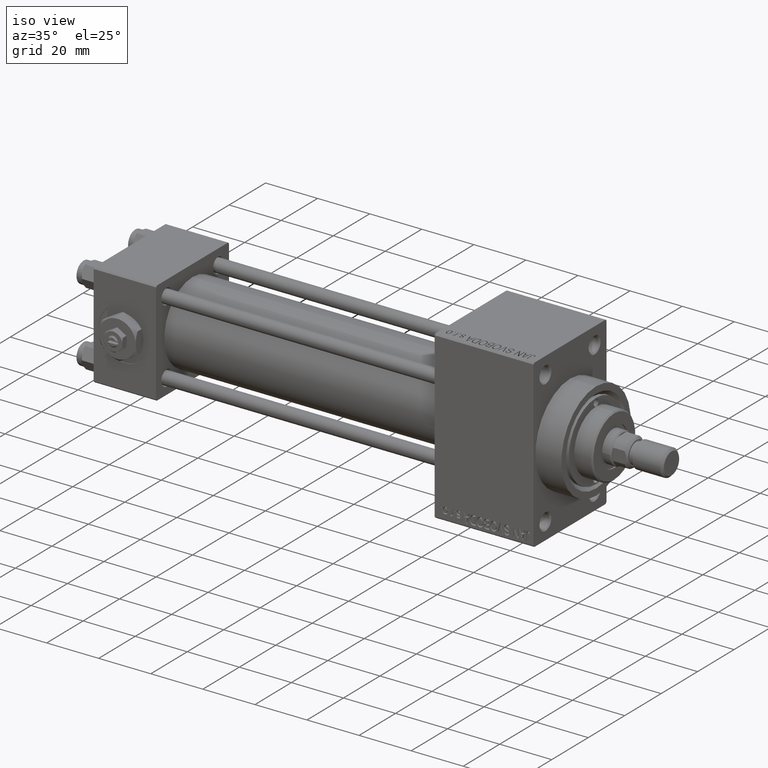
[diagram: clean part render]
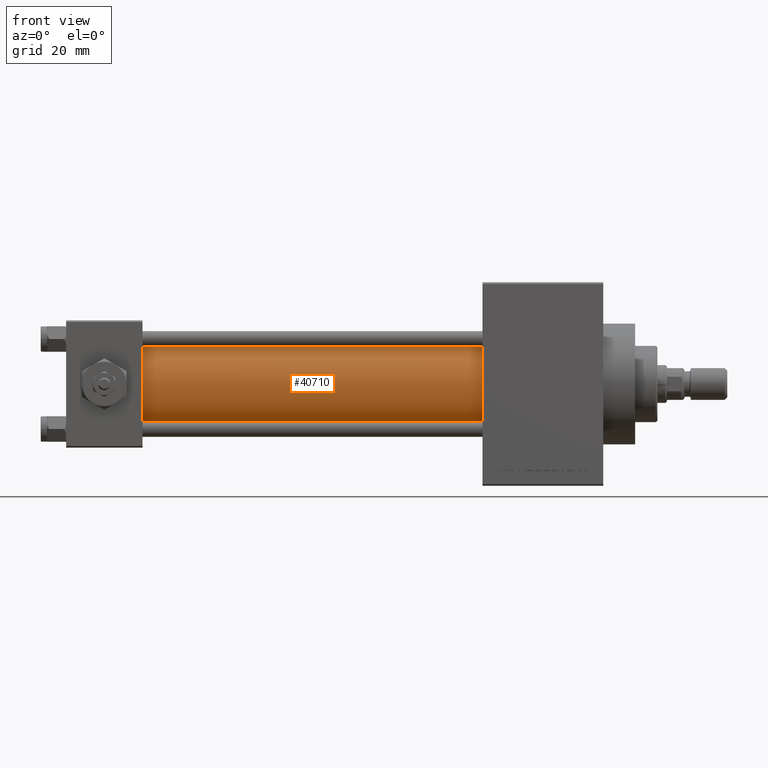
[diagram: tour spotlight — one face highlighted and labeled with its STEP entity id]
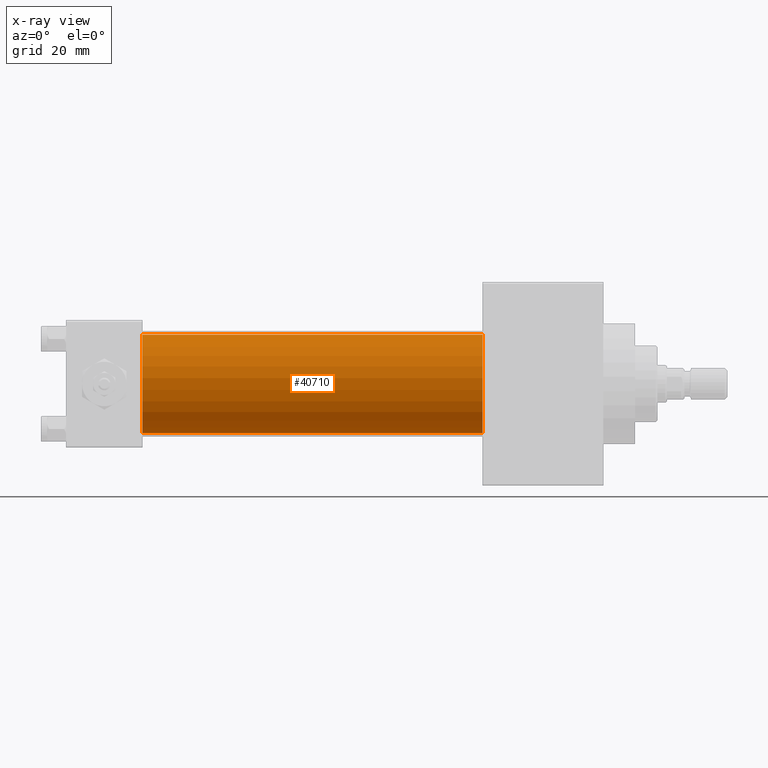
[diagram: x-ray of the same camera — body ghosted, this tour face saturated]
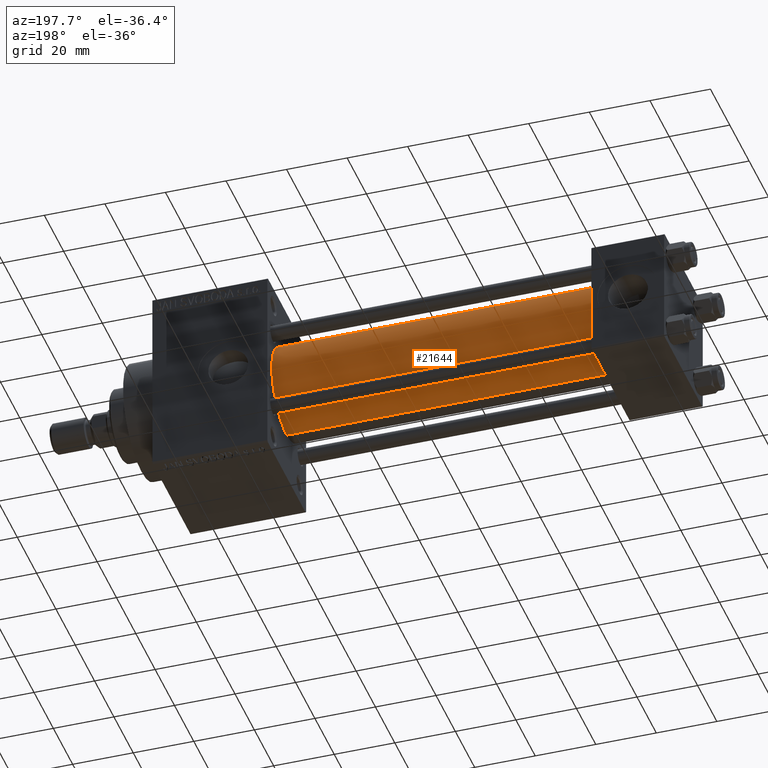
[diagram: tour spotlight — one face highlighted and labeled with its STEP entity id]
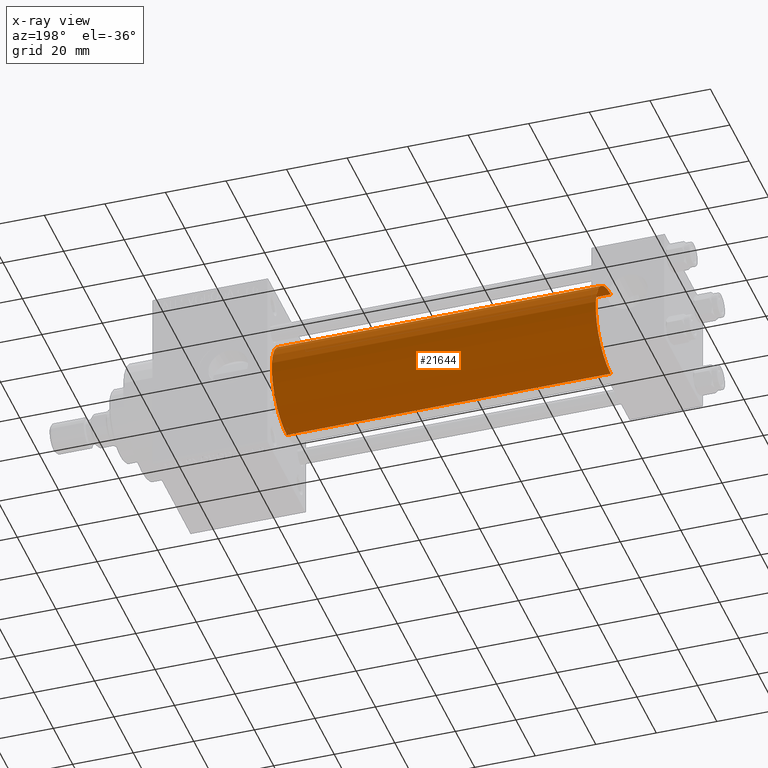
[diagram: x-ray of the same camera — body ghosted, this tour face saturated]
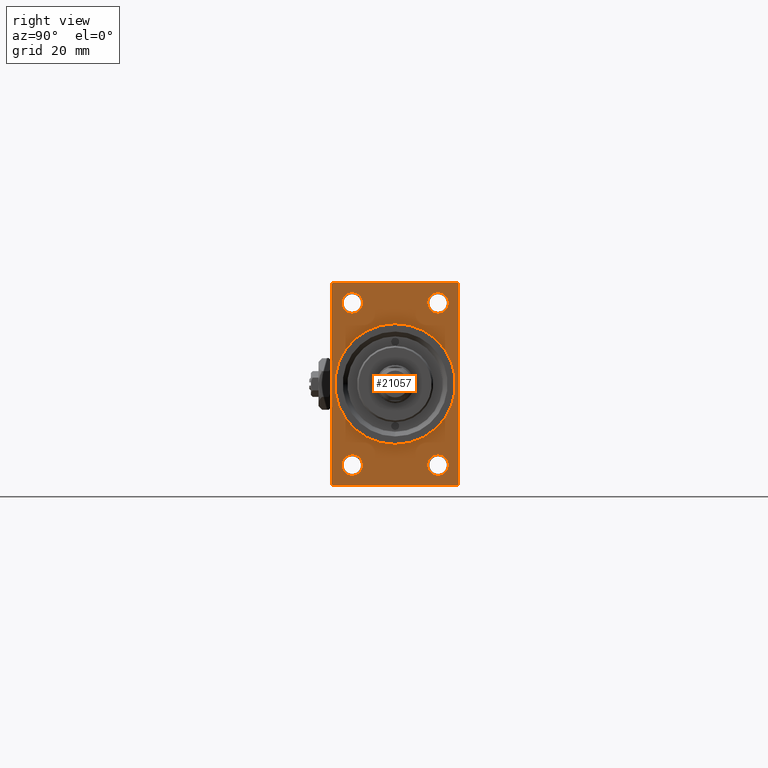
[diagram: tour spotlight — one face highlighted and labeled with its STEP entity id]
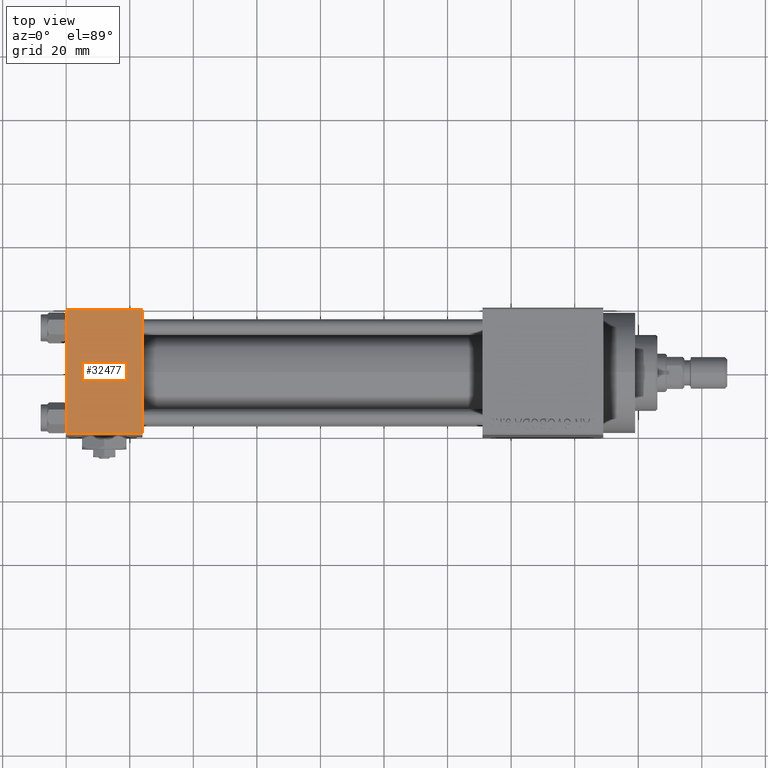
[diagram: tour spotlight — one face highlighted and labeled with its STEP entity id]
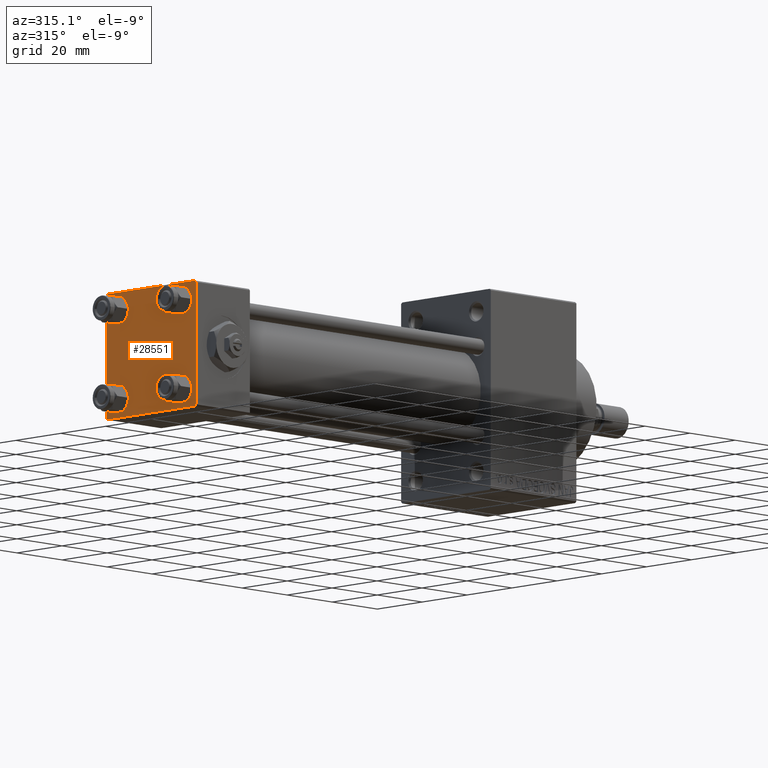
[diagram: tour spotlight — one face highlighted and labeled with its STEP entity id]
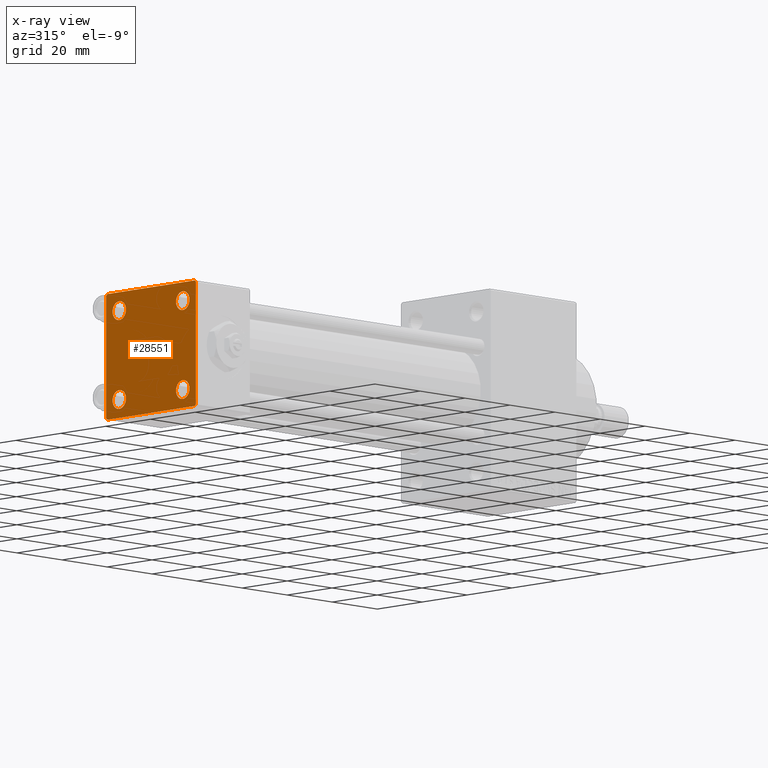
[diagram: x-ray of the same camera — body ghosted, this tour face saturated]
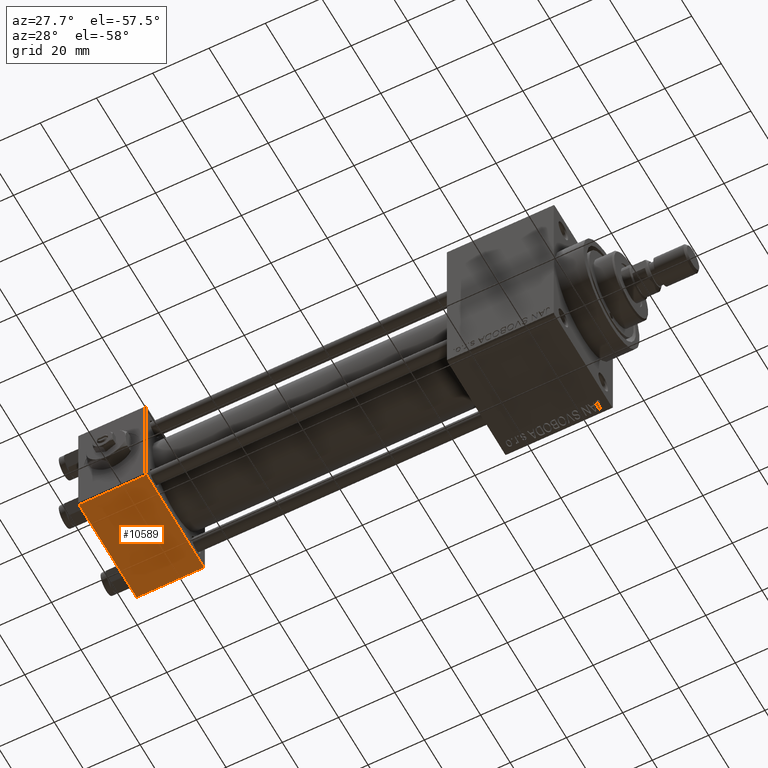
[diagram: tour spotlight — one face highlighted and labeled with its STEP entity id]
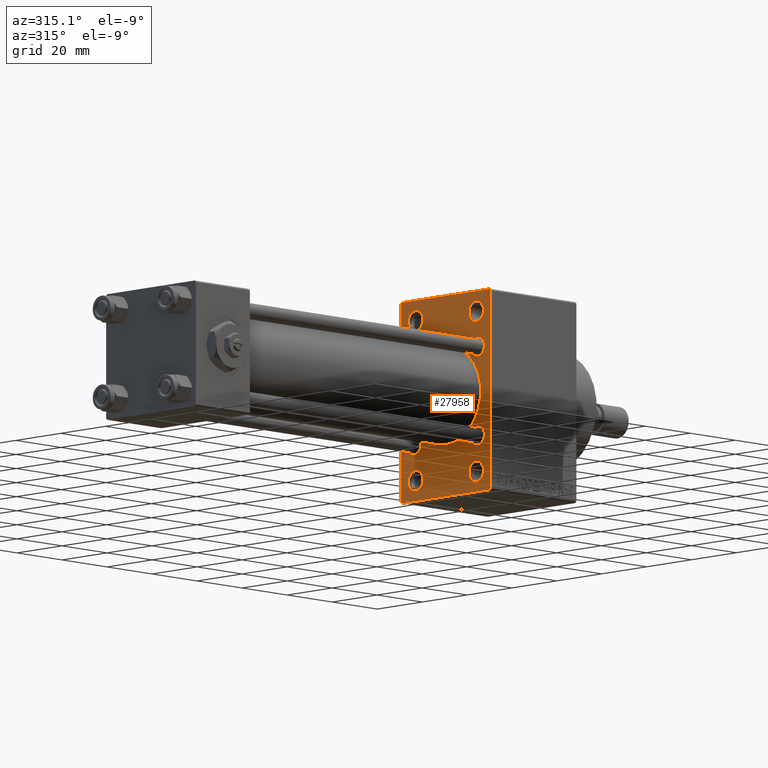
[diagram: tour spotlight — one face highlighted and labeled with its STEP entity id]
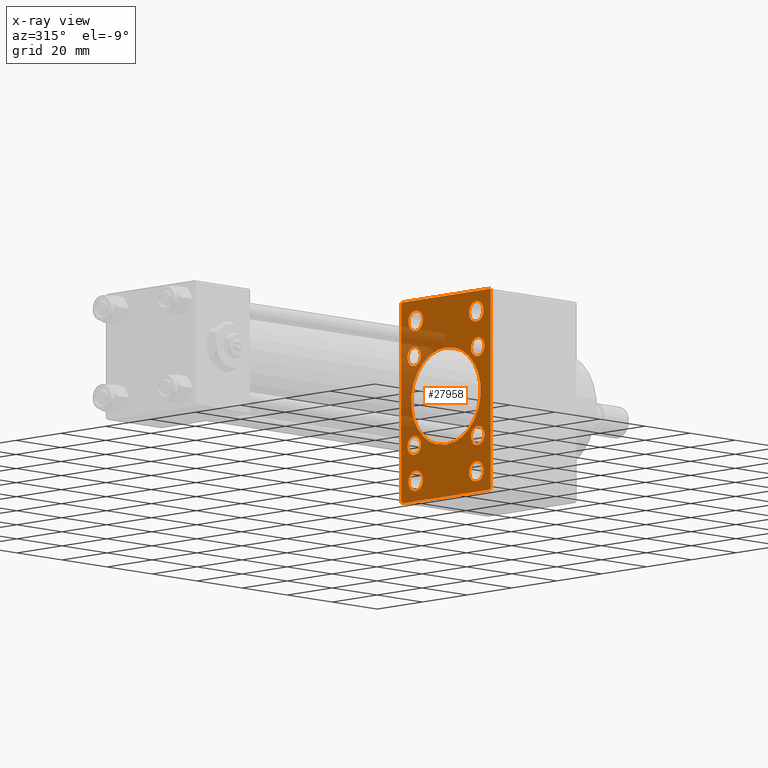
[diagram: x-ray of the same camera — body ghosted, this tour face saturated]
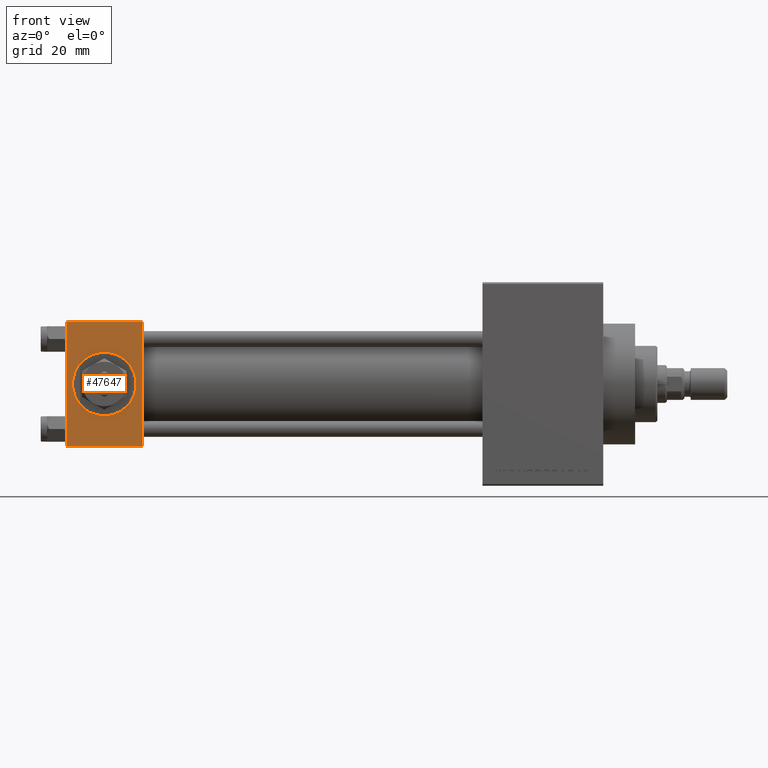
[diagram: tour spotlight — one face highlighted and labeled with its STEP entity id]
A machine part: a face-by-face anatomy tour. The part has 1177 B-rep faces; the first image is the clean iso view, then the 8 largest visible faces are spotlighted one at a time (largest first), each with its STEP entity span.

Face 1 — front view, entity #40710. An x-ray twin of the same camera follows (body ghosted, this face saturated) — the face is partly hidden behind the body. In plain terms, the highlighted cylindrical surface (partial cylindrical patch) has radius 15.5 mm, axis along (-1, -0, -0).
Definition (entity closure, byte-faithful):
#1781 = FACE_OUTER_BOUND ( 'NONE', #24476, .T. ) ;
#3795 = ORIENTED_EDGE ( 'NONE', *, *, #17005, .F. ) ;
#4765 = CARTESIAN_POINT ( 'NONE',  ( 23.99999999999999289, -7.038826752868131828E-16, -15.50000000000000000 ) ) ;
#6316 = CARTESIAN_POINT ( 'NONE',  ( 131.0000000000000000, -7.038826752868131828E-16, -15.50000000000000000 ) ) ;
#7599 = CARTESIAN_POINT ( 'NONE',  ( 131.0000000000000000, -2.602085213965210642E-15, 0.000000000000000000 ) ) ;
#8243 = LINE ( 'NONE', #23979, #29441 ) ;
#8352 = AXIS2_PLACEMENT_3D ( 'NONE', #14333, #21585, #36582 ) ;
#9610 = ORIENTED_EDGE ( 'NONE', *, *, #19669, .T. ) ;
#13789 = CARTESIAN_POINT ( 'NONE',  ( 131.0000000000000000, -7.038826752868131828E-16, -15.50000000000000000 ) ) ;
#14333 = CARTESIAN_POINT ( 'NONE',  ( 23.99999999999999289, -2.602085213965210642E-15, 0.000000000000000000 ) ) ;
#17005 = EDGE_CURVE ( 'NONE', #35870, #40050, #21332, .T. ) ;
#17040 = DIRECTION ( 'NONE',  ( 0.000000000000000000, 0.000000000000000000, 1.000000000000000000 ) ) ;
#17307 = ORIENTED_EDGE ( 'NONE', *, *, #17974, .F. ) ;
#17974 = EDGE_CURVE ( 'NONE', #40050, #21904, #21814, .T. ) ;
#18614 = DIRECTION ( 'NONE',  ( 0.000000000000000000, 0.000000000000000000, -1.000000000000000000 ) ) ;
#19669 = EDGE_CURVE ( 'NONE', #35870, #29483, #8243, .T. ) ;
#21332 = CIRCLE ( 'NONE', #49261, 15.50000000000000000 ) ;
#21537 = CYLINDRICAL_SURFACE ( 'NONE', #36950, 15.50000000000000000 ) ;
#21585 = DIRECTION ( 'NONE',  ( 1.000000000000000000, 0.000000000000000000, 0.000000000000000000 ) ) ;
#21814 = LINE ( 'NONE', #6316, #22198 ) ;
#21904 = VERTEX_POINT ( 'NONE', #4765 ) ;
#22198 = VECTOR ( 'NONE', #25574, 1000.000000000000000 ) ;
#23979 = CARTESIAN_POINT ( 'NONE',  ( 131.0000000000000000, -2.602085213965210642E-15, 15.50000000000000000 ) ) ;
#24476 = EDGE_LOOP ( 'NONE', ( #17307, #3795, #9610, #45852 ) ) ;
#24539 = DIRECTION ( 'NONE',  ( -1.000000000000000000, -0.000000000000000000, -0.000000000000000000 ) ) ;
#25574 = DIRECTION ( 'NONE',  ( -1.000000000000000000, -0.000000000000000000, -0.000000000000000000 ) ) ;
#26846 = DIRECTION ( 'NONE',  ( 1.000000000000000000, 0.000000000000000000, 0.000000000000000000 ) ) ;
#29441 = VECTOR ( 'NONE', #35470, 1000.000000000000000 ) ;
#29483 = VERTEX_POINT ( 'NONE', #35183 ) ;
#35183 = CARTESIAN_POINT ( 'NONE',  ( 23.99999999999999289, -2.602085213965210642E-15, 15.50000000000000000 ) ) ;
#35470 = DIRECTION ( 'NONE',  ( -1.000000000000000000, -0.000000000000000000, -0.000000000000000000 ) ) ;
#35870 = VERTEX_POINT ( 'NONE', #42817 ) ;
#36582 = DIRECTION ( 'NONE',  ( 0.000000000000000000, 0.000000000000000000, 1.000000000000000000 ) ) ;
#36950 = AXIS2_PLACEMENT_3D ( 'NONE', #43537, #24539, #17040 ) ;
#40050 = VERTEX_POINT ( 'NONE', #13789 ) ;
#40710 = ADVANCED_FACE ( 'NONE', ( #1781 ), #21537, .T. ) ;
#42817 = CARTESIAN_POINT ( 'NONE',  ( 131.0000000000000000, -2.602085213965210642E-15, 15.50000000000000000 ) ) ;
#43537 = CARTESIAN_POINT ( 'NONE',  ( 131.0000000000000000, -2.602085213965210642E-15, 0.000000000000000000 ) ) ;
#45072 = CIRCLE ( 'NONE', #8352, 15.50000000000000000 ) ;
#45783 = EDGE_CURVE ( 'NONE', #29483, #21904, #45072, .T. ) ;
#45852 = ORIENTED_EDGE ( 'NONE', *, *, #45783, .T. ) ;
#49261 = AXIS2_PLACEMENT_3D ( 'NONE', #7599, #26846, #18614 ) ;

Face 2 — auxiliary view, entity #21644. An x-ray twin of the same camera follows (body ghosted, this face saturated) — the face is partly hidden behind the body. In plain terms, the highlighted cylindrical surface (partial cylindrical patch) has radius 15.5 mm, axis along (-1, -0, -0).
Definition (entity closure, byte-faithful):
#3920 = AXIS2_PLACEMENT_3D ( 'NONE', #49418, #42173, #31148 ) ;
#4765 = CARTESIAN_POINT ( 'NONE',  ( 23.99999999999999289, -7.038826752868131828E-16, -15.50000000000000000 ) ) ;
#6316 = CARTESIAN_POINT ( 'NONE',  ( 131.0000000000000000, -7.038826752868131828E-16, -15.50000000000000000 ) ) ;
#8243 = LINE ( 'NONE', #23979, #29441 ) ;
#8763 = ORIENTED_EDGE ( 'NONE', *, *, #19669, .F. ) ;
#11275 = DIRECTION ( 'NONE',  ( 0.000000000000000000, 0.000000000000000000, 1.000000000000000000 ) ) ;
#13789 = CARTESIAN_POINT ( 'NONE',  ( 131.0000000000000000, -7.038826752868131828E-16, -15.50000000000000000 ) ) ;
#14535 = DIRECTION ( 'NONE',  ( 1.000000000000000000, 0.000000000000000000, 0.000000000000000000 ) ) ;
#16818 = CIRCLE ( 'NONE', #27981, 15.50000000000000000 ) ;
#17974 = EDGE_CURVE ( 'NONE', #40050, #21904, #21814, .T. ) ;
#19669 = EDGE_CURVE ( 'NONE', #35870, #29483, #8243, .T. ) ;
#21644 = ADVANCED_FACE ( 'NONE', ( #23423 ), #37936, .T. ) ;
#21814 = LINE ( 'NONE', #6316, #22198 ) ;
#21904 = VERTEX_POINT ( 'NONE', #4765 ) ;
#22198 = VECTOR ( 'NONE', #25574, 1000.000000000000000 ) ;
#23423 = FACE_OUTER_BOUND ( 'NONE', #37849, .T. ) ;
#23979 = CARTESIAN_POINT ( 'NONE',  ( 131.0000000000000000, -2.602085213965210642E-15, 15.50000000000000000 ) ) ;
#25574 = DIRECTION ( 'NONE',  ( -1.000000000000000000, -0.000000000000000000, -0.000000000000000000 ) ) ;
#27981 = AXIS2_PLACEMENT_3D ( 'NONE', #48763, #14535, #11275 ) ;
#28063 = EDGE_CURVE ( 'NONE', #21904, #29483, #16818, .T. ) ;
#29081 = EDGE_CURVE ( 'NONE', #40050, #35870, #40808, .T. ) ;
#29441 = VECTOR ( 'NONE', #35470, 1000.000000000000000 ) ;
#29483 = VERTEX_POINT ( 'NONE', #35183 ) ;
#30279 = ORIENTED_EDGE ( 'NONE', *, *, #17974, .T. ) ;
#30413 = AXIS2_PLACEMENT_3D ( 'NONE', #32859, #40605, #44605 ) ;
#31148 = DIRECTION ( 'NONE',  ( 0.000000000000000000, 0.000000000000000000, 1.000000000000000000 ) ) ;
#32859 = CARTESIAN_POINT ( 'NONE',  ( 131.0000000000000000, -2.602085213965210642E-15, 0.000000000000000000 ) ) ;
#35183 = CARTESIAN_POINT ( 'NONE',  ( 23.99999999999999289, -2.602085213965210642E-15, 15.50000000000000000 ) ) ;
#35470 = DIRECTION ( 'NONE',  ( -1.000000000000000000, -0.000000000000000000, -0.000000000000000000 ) ) ;
#35870 = VERTEX_POINT ( 'NONE', #42817 ) ;
#36854 = ORIENTED_EDGE ( 'NONE', *, *, #29081, .F. ) ;
#37849 = EDGE_LOOP ( 'NONE', ( #36854, #30279, #47686, #8763 ) ) ;
#37936 = CYLINDRICAL_SURFACE ( 'NONE', #3920, 15.50000000000000000 ) ;
#40050 = VERTEX_POINT ( 'NONE', #13789 ) ;
#40605 = DIRECTION ( 'NONE',  ( 1.000000000000000000, 0.000000000000000000, 0.000000000000000000 ) ) ;
#40808 = CIRCLE ( 'NONE', #30413, 15.50000000000000000 ) ;
#42173 = DIRECTION ( 'NONE',  ( -1.000000000000000000, -0.000000000000000000, -0.000000000000000000 ) ) ;
#42817 = CARTESIAN_POINT ( 'NONE',  ( 131.0000000000000000, -2.602085213965210642E-15, 15.50000000000000000 ) ) ;
#44605 = DIRECTION ( 'NONE',  ( 0.000000000000000000, 0.000000000000000000, -1.000000000000000000 ) ) ;
#47686 = ORIENTED_EDGE ( 'NONE', *, *, #28063, .T. ) ;
#48763 = CARTESIAN_POINT ( 'NONE',  ( 23.99999999999999289, -2.602085213965210642E-15, 0.000000000000000000 ) ) ;
#49418 = CARTESIAN_POINT ( 'NONE',  ( 131.0000000000000000, -2.602085213965210642E-15, 0.000000000000000000 ) ) ;

Face 3 — right view, entity #21057. In plain terms, the highlighted planar face has unit normal (-1, 0, 0).
Definition (entity closure, byte-faithful):
#98 = VERTEX_POINT ( 'NONE', #32879 ) ;
#287 = ORIENTED_EDGE ( 'NONE', *, *, #6743, .T. ) ;
#411 = VECTOR ( 'NONE', #5996, 1000.000000000000000 ) ;
#474 = VECTOR ( 'NONE', #41851, 1000.000000000000000 ) ;
#1103 = DIRECTION ( 'NONE',  ( -1.000000000000000000, -0.000000000000000000, -0.000000000000000000 ) ) ;
#1541 = DIRECTION ( 'NONE',  ( 0.000000000000000000, 0.000000000000000000, -1.000000000000000000 ) ) ;
#1788 = CARTESIAN_POINT ( 'NONE',  ( 169.0000000000000000, 20.00000000000000000, 32.00000000000000000 ) ) ;
#1805 = DIRECTION ( 'NONE',  ( -1.000000000000000000, -0.000000000000000000, -0.000000000000000000 ) ) ;
#1901 = DIRECTION ( 'NONE',  ( -1.000000000000000000, -0.000000000000000000, -0.000000000000000000 ) ) ;
#2320 = LINE ( 'NONE', #17569, #37289 ) ;
#2677 = VERTEX_POINT ( 'NONE', #3690 ) ;
#2864 = CIRCLE ( 'NONE', #37204, 3.250000000000030642 ) ;
#3407 = AXIS2_PLACEMENT_3D ( 'NONE', #21902, #1901, #5904 ) ;
#3690 = CARTESIAN_POINT ( 'NONE',  ( 169.0000000000000000, -20.00000000000000000, -31.50000000000000711 ) ) ;
#3859 = CARTESIAN_POINT ( 'NONE',  ( 169.0000000000000000, 20.00000000000000000, 32.00000000000000000 ) ) ;
#3967 = DIRECTION ( 'NONE',  ( -1.000000000000000000, -0.000000000000000000, -0.000000000000000000 ) ) ;
#4039 = DIRECTION ( 'NONE',  ( -1.000000000000000000, -0.000000000000000000, -0.000000000000000000 ) ) ;
#4300 = ORIENTED_EDGE ( 'NONE', *, *, #43729, .T. ) ;
#4984 = CIRCLE ( 'NONE', #3407, 3.250000000000030642 ) ;
#5495 = CARTESIAN_POINT ( 'NONE',  ( 169.0000000000000000, 20.00000000000000000, -32.00000000000000000 ) ) ;
#5557 = CARTESIAN_POINT ( 'NONE',  ( 169.0000000000000000, -13.50000000000000178, 25.50000000000000355 ) ) ;
#5793 = DIRECTION ( 'NONE',  ( -1.000000000000000000, -0.000000000000000000, -0.000000000000000000 ) ) ;
#5904 = DIRECTION ( 'NONE',  ( 0.000000000000000000, 0.000000000000000000, 1.000000000000000000 ) ) ;
#5996 = DIRECTION ( 'NONE',  ( 0.000000000000000000, -1.000000000000000000, 0.000000000000000000 ) ) ;
#6244 = CARTESIAN_POINT ( 'NONE',  ( 169.0000000000000000, -19.49999999999997158, 31.99999999999999289 ) ) ;
#6484 = ORIENTED_EDGE ( 'NONE', *, *, #40248, .T. ) ;
#6743 = EDGE_CURVE ( 'NONE', #39362, #38689, #41891, .T. ) ;
#6767 = CARTESIAN_POINT ( 'NONE',  ( 169.0000000000000000, 0.000000000000000000, 0.000000000000000000 ) ) ;
#6769 = EDGE_CURVE ( 'NONE', #15229, #18617, #21044, .T. ) ;
#6913 = DIRECTION ( 'NONE',  ( -0.000000000000000000, 0.000000000000000000, 1.000000000000000000 ) ) ;
#7054 = VERTEX_POINT ( 'NONE', #13928 ) ;
#7406 = FACE_OUTER_BOUND ( 'NONE', #27865, .T. ) ;
#7772 = ORIENTED_EDGE ( 'NONE', *, *, #41905, .T. ) ;
#7910 = EDGE_LOOP ( 'NONE', ( #6484, #10741 ) ) ;
#7916 = VERTEX_POINT ( 'NONE', #6244 ) ;
#7918 = EDGE_CURVE ( 'NONE', #34380, #49214, #25002, .T. ) ;
#8022 = ORIENTED_EDGE ( 'NONE', *, *, #29901, .T. ) ;
#8527 = CARTESIAN_POINT ( 'NONE',  ( 169.0000000000000000, 13.49999999999999822, 25.50000000000000355 ) ) ;
#8812 = LINE ( 'NONE', #28044, #43485 ) ;
#9031 = VECTOR ( 'NONE', #42735, 1000.000000000000114 ) ;
#9122 = EDGE_LOOP ( 'NONE', ( #37973, #33490 ) ) ;
#9426 = FACE_BOUND ( 'NONE', #9122, .T. ) ;
#10144 = EDGE_LOOP ( 'NONE', ( #287, #4300 ) ) ;
#10632 = CARTESIAN_POINT ( 'NONE',  ( 169.0000000000000000, -19.50000000000002842, -32.00000000000000000 ) ) ;
#10724 = CIRCLE ( 'NONE', #45003, 3.250000000000030642 ) ;
#10741 = ORIENTED_EDGE ( 'NONE', *, *, #25362, .T. ) ;
#11429 = CARTESIAN_POINT ( 'NONE',  ( 169.0000000000000000, -13.50000000000000178, 22.24999999999997158 ) ) ;
#11531 = EDGE_CURVE ( 'NONE', #41938, #2677, #8812, .T. ) ;
#11830 = AXIS2_PLACEMENT_3D ( 'NONE', #6767, #37275, #45501 ) ;
#12380 = DIRECTION ( 'NONE',  ( 0.000000000000000000, 0.000000000000000000, 1.000000000000000000 ) ) ;
#12507 = VERTEX_POINT ( 'NONE', #36124 ) ;
#13042 = CARTESIAN_POINT ( 'NONE',  ( 169.0000000000000000, 2.326828918379970970E-15, -19.00000000000000000 ) ) ;
#13323 = DIRECTION ( 'NONE',  ( 0.000000000000000000, 0.000000000000000000, 1.000000000000000000 ) ) ;
#13380 = LINE ( 'NONE', #43620, #28896 ) ;
#13802 = DIRECTION ( 'NONE',  ( 0.000000000000000000, 0.000000000000000000, -1.000000000000000000 ) ) ;
#13928 = CARTESIAN_POINT ( 'NONE',  ( 169.0000000000000000, 13.49999999999999822, 28.75000000000003553 ) ) ;
#14306 = AXIS2_PLACEMENT_3D ( 'NONE', #48894, #36915, #6913 ) ;
#14620 = EDGE_CURVE ( 'NONE', #26703, #7916, #33865, .T. ) ;
#14827 = CIRCLE ( 'NONE', #48345, 3.250000000000030642 ) ;
#14859 = EDGE_CURVE ( 'NONE', #34380, #18617, #2320, .T. ) ;
#15223 = CARTESIAN_POINT ( 'NONE',  ( 169.0000000000000000, 13.49999999999999822, -25.50000000000000000 ) ) ;
#15226 = DIRECTION ( 'NONE',  ( 0.000000000000000000, 0.000000000000000000, 1.000000000000000000 ) ) ;
#15229 = VERTEX_POINT ( 'NONE', #25653 ) ;
#15994 = CARTESIAN_POINT ( 'NONE',  ( 169.0000000000000000, 19.50000000000000000, 32.00000000000000000 ) ) ;
#16073 = CARTESIAN_POINT ( 'NONE',  ( 169.0000000000000000, 0.000000000000000000, 19.00000000000000000 ) ) ;
#16543 = EDGE_CURVE ( 'NONE', #2677, #49214, #39003, .T. ) ;
#17191 = ORIENTED_EDGE ( 'NONE', *, *, #34703, .T. ) ;
#17569 = CARTESIAN_POINT ( 'NONE',  ( 169.0000000000000000, 20.00000000000000000, -31.50000000000000000 ) ) ;
#17790 = DIRECTION ( 'NONE',  ( 0.000000000000000000, 0.000000000000000000, 1.000000000000000000 ) ) ;
#17861 = CARTESIAN_POINT ( 'NONE',  ( 169.0000000000000000, 13.49999999999999822, -25.50000000000000000 ) ) ;
#18058 = CARTESIAN_POINT ( 'NONE',  ( 169.0000000000000000, 0.000000000000000000, 0.000000000000000000 ) ) ;
#18617 = VERTEX_POINT ( 'NONE', #42649 ) ;
#18740 = VECTOR ( 'NONE', #13802, 1000.000000000000000 ) ;
#19544 = EDGE_CURVE ( 'NONE', #20142, #36839, #48549, .T. ) ;
#19739 = LINE ( 'NONE', #15994, #9031 ) ;
#20142 = VERTEX_POINT ( 'NONE', #13042 ) ;
#20661 = FACE_BOUND ( 'NONE', #7910, .T. ) ;
#20738 = ORIENTED_EDGE ( 'NONE', *, *, #14859, .T. ) ;
#21044 = LINE ( 'NONE', #1788, #18740 ) ;
#21057 = ADVANCED_FACE ( 'NONE', ( #40664, #43666, #21667, #20661, #9426, #7406 ), #33166, .F. ) ;
#21667 = FACE_BOUND ( 'NONE', #48632, .T. ) ;
#21902 = CARTESIAN_POINT ( 'NONE',  ( 169.0000000000000000, 13.49999999999999822, 25.50000000000000355 ) ) ;
#22838 = CARTESIAN_POINT ( 'NONE',  ( 169.0000000000000000, 13.49999999999999822, 22.24999999999997513 ) ) ;
#23936 = DIRECTION ( 'NONE',  ( 0.000000000000000000, 0.000000000000000000, 1.000000000000000000 ) ) ;
#24731 = CARTESIAN_POINT ( 'NONE',  ( 169.0000000000000000, -20.00000000000000000, 31.49999999999999289 ) ) ;
#24855 = AXIS2_PLACEMENT_3D ( 'NONE', #46861, #1103, #12380 ) ;
#24940 = CARTESIAN_POINT ( 'NONE',  ( 169.0000000000000000, 13.49999999999999822, -28.75000000000002842 ) ) ;
#25002 = LINE ( 'NONE', #5495, #411 ) ;
#25362 = EDGE_CURVE ( 'NONE', #7054, #29187, #34276, .T. ) ;
#25653 = CARTESIAN_POINT ( 'NONE',  ( 169.0000000000000000, 20.00000000000000000, 31.50000000000000000 ) ) ;
#26192 = VERTEX_POINT ( 'NONE', #11429 ) ;
#26288 = EDGE_LOOP ( 'NONE', ( #47390, #17191 ) ) ;
#26703 = VERTEX_POINT ( 'NONE', #44756 ) ;
#27511 = DIRECTION ( 'NONE',  ( 0.000000000000000000, 0.7071067811865328068, -0.7071067811865622277 ) ) ;
#27865 = EDGE_LOOP ( 'NONE', ( #44686, #44657, #43170, #20738, #45281, #7772, #37114, #42669 ) ) ;
#28044 = CARTESIAN_POINT ( 'NONE',  ( 169.0000000000000000, -20.00000000000000000, 31.99999999999999289 ) ) ;
#28285 = CIRCLE ( 'NONE', #37124, 19.00000000000000000 ) ;
#28896 = VECTOR ( 'NONE', #39866, 1000.000000000000000 ) ;
#29187 = VERTEX_POINT ( 'NONE', #22838 ) ;
#29362 = DIRECTION ( 'NONE',  ( 0.000000000000000000, 0.000000000000000000, 1.000000000000000000 ) ) ;
#29636 = CIRCLE ( 'NONE', #24855, 3.250000000000030642 ) ;
#29757 = EDGE_CURVE ( 'NONE', #7916, #41938, #13380, .T. ) ;
#29901 = EDGE_CURVE ( 'NONE', #98, #35331, #42443, .T. ) ;
#31320 = CARTESIAN_POINT ( 'NONE',  ( 169.0000000000000000, -13.50000000000000533, -22.24999999999996447 ) ) ;
#32879 = CARTESIAN_POINT ( 'NONE',  ( 169.0000000000000000, 13.49999999999999822, -22.24999999999996803 ) ) ;
#33109 = DIRECTION ( 'NONE',  ( -1.000000000000000000, -0.000000000000000000, -0.000000000000000000 ) ) ;
#33166 = PLANE ( 'NONE',  #14306 ) ;
#33306 = DIRECTION ( 'NONE',  ( 1.000000000000000000, 0.000000000000000000, 0.000000000000000000 ) ) ;
#33490 = ORIENTED_EDGE ( 'NONE', *, *, #19544, .F. ) ;
#33865 = LINE ( 'NONE', #3859, #474 ) ;
#34276 = CIRCLE ( 'NONE', #47825, 3.250000000000030642 ) ;
#34380 = VERTEX_POINT ( 'NONE', #42684 ) ;
#34703 = EDGE_CURVE ( 'NONE', #12507, #26192, #29636, .T. ) ;
#34770 = DIRECTION ( 'NONE',  ( 0.000000000000000000, 0.000000000000000000, 1.000000000000000000 ) ) ;
#35194 = DIRECTION ( 'NONE',  ( 0.000000000000000000, 0.000000000000000000, -1.000000000000000000 ) ) ;
#35331 = VERTEX_POINT ( 'NONE', #24940 ) ;
#35700 = VECTOR ( 'NONE', #27511, 1000.000000000000000 ) ;
#36124 = CARTESIAN_POINT ( 'NONE',  ( 169.0000000000000000, -13.50000000000000178, 28.75000000000003197 ) ) ;
#36839 = VERTEX_POINT ( 'NONE', #16073 ) ;
#36915 = DIRECTION ( 'NONE',  ( -1.000000000000000000, 0.000000000000000000, -0.000000000000000000 ) ) ;
#37114 = ORIENTED_EDGE ( 'NONE', *, *, #14620, .T. ) ;
#37124 = AXIS2_PLACEMENT_3D ( 'NONE', #18058, #33306, #35194 ) ;
#37204 = AXIS2_PLACEMENT_3D ( 'NONE', #5557, #1805, #13323 ) ;
#37275 = DIRECTION ( 'NONE',  ( 1.000000000000000000, 0.000000000000000000, 0.000000000000000000 ) ) ;
#37289 = VECTOR ( 'NONE', #48054, 1000.000000000000114 ) ;
#37973 = ORIENTED_EDGE ( 'NONE', *, *, #48518, .F. ) ;
#38689 = VERTEX_POINT ( 'NONE', #31320 ) ;
#39003 = LINE ( 'NONE', #42757, #35700 ) ;
#39362 = VERTEX_POINT ( 'NONE', #48135 ) ;
#39866 = DIRECTION ( 'NONE',  ( -0.000000000000000000, -0.7071067811865672237, -0.7071067811865279218 ) ) ;
#40045 = CARTESIAN_POINT ( 'NONE',  ( 169.0000000000000000, -13.50000000000000533, -25.49999999999999645 ) ) ;
#40248 = EDGE_CURVE ( 'NONE', #29187, #7054, #4984, .T. ) ;
#40664 = FACE_BOUND ( 'NONE', #26288, .T. ) ;
#41851 = DIRECTION ( 'NONE',  ( 0.000000000000000000, -1.000000000000000000, -1.734723475976807094E-16 ) ) ;
#41891 = CIRCLE ( 'NONE', #46658, 3.250000000000030642 ) ;
#41905 = EDGE_CURVE ( 'NONE', #15229, #26703, #19739, .T. ) ;
#41938 = VERTEX_POINT ( 'NONE', #24731 ) ;
#42217 = ORIENTED_EDGE ( 'NONE', *, *, #47617, .T. ) ;
#42443 = CIRCLE ( 'NONE', #48827, 3.250000000000030642 ) ;
#42649 = CARTESIAN_POINT ( 'NONE',  ( 169.0000000000000000, 20.00000000000000000, -31.50000000000000000 ) ) ;
#42669 = ORIENTED_EDGE ( 'NONE', *, *, #29757, .T. ) ;
#42684 = CARTESIAN_POINT ( 'NONE',  ( 169.0000000000000000, 19.50000000000000000, -32.00000000000000000 ) ) ;
#42735 = DIRECTION ( 'NONE',  ( 0.000000000000000000, -0.7071067811865474617, 0.7071067811865474617 ) ) ;
#42757 = CARTESIAN_POINT ( 'NONE',  ( 169.0000000000000000, -19.50000000000002842, -32.00000000000000000 ) ) ;
#43170 = ORIENTED_EDGE ( 'NONE', *, *, #7918, .F. ) ;
#43485 = VECTOR ( 'NONE', #1541, 1000.000000000000000 ) ;
#43620 = CARTESIAN_POINT ( 'NONE',  ( 169.0000000000000000, -20.00000000000000000, 31.49999999999999289 ) ) ;
#43666 = FACE_BOUND ( 'NONE', #10144, .T. ) ;
#43729 = EDGE_CURVE ( 'NONE', #38689, #39362, #10724, .T. ) ;
#44657 = ORIENTED_EDGE ( 'NONE', *, *, #16543, .T. ) ;
#44686 = ORIENTED_EDGE ( 'NONE', *, *, #11531, .T. ) ;
#44756 = CARTESIAN_POINT ( 'NONE',  ( 169.0000000000000000, 19.50000000000000000, 32.00000000000000000 ) ) ;
#45003 = AXIS2_PLACEMENT_3D ( 'NONE', #48722, #49457, #15226 ) ;
#45281 = ORIENTED_EDGE ( 'NONE', *, *, #6769, .F. ) ;
#45501 = DIRECTION ( 'NONE',  ( 0.000000000000000000, 0.000000000000000000, -1.000000000000000000 ) ) ;
#46658 = AXIS2_PLACEMENT_3D ( 'NONE', #40045, #5793, #17790 ) ;
#46861 = CARTESIAN_POINT ( 'NONE',  ( 169.0000000000000000, -13.50000000000000178, 25.50000000000000355 ) ) ;
#47390 = ORIENTED_EDGE ( 'NONE', *, *, #48397, .T. ) ;
#47617 = EDGE_CURVE ( 'NONE', #35331, #98, #14827, .T. ) ;
#47825 = AXIS2_PLACEMENT_3D ( 'NONE', #8527, #4039, #34770 ) ;
#48054 = DIRECTION ( 'NONE',  ( -0.000000000000000000, 0.7071067811865474617, 0.7071067811865474617 ) ) ;
#48135 = CARTESIAN_POINT ( 'NONE',  ( 169.0000000000000000, -13.50000000000000533, -28.75000000000002487 ) ) ;
#48345 = AXIS2_PLACEMENT_3D ( 'NONE', #15223, #3967, #23936 ) ;
#48397 = EDGE_CURVE ( 'NONE', #26192, #12507, #2864, .T. ) ;
#48518 = EDGE_CURVE ( 'NONE', #36839, #20142, #28285, .T. ) ;
#48549 = CIRCLE ( 'NONE', #11830, 19.00000000000000000 ) ;
#48632 = EDGE_LOOP ( 'NONE', ( #42217, #8022 ) ) ;
#48722 = CARTESIAN_POINT ( 'NONE',  ( 169.0000000000000000, -13.50000000000000533, -25.49999999999999645 ) ) ;
#48827 = AXIS2_PLACEMENT_3D ( 'NONE', #17861, #33109, #29362 ) ;
#48894 = CARTESIAN_POINT ( 'NONE',  ( 169.0000000000000000, 0.000000000000000000, 0.000000000000000000 ) ) ;
#49214 = VERTEX_POINT ( 'NONE', #10632 ) ;
#49457 = DIRECTION ( 'NONE',  ( -1.000000000000000000, -0.000000000000000000, -0.000000000000000000 ) ) ;

Face 4 — top view, entity #32477. In plain terms, the highlighted planar face has unit normal (0, 0, -1).
Definition (entity closure, byte-faithful):
#1406 = DIRECTION ( 'NONE',  ( 0.000000000000000000, 2.602085213965210149E-16, -1.000000000000000000 ) ) ;
#3375 = LINE ( 'NONE', #7854, #48412 ) ;
#7092 = CARTESIAN_POINT ( 'NONE',  ( 0.000000000000000000, 19.50000000000000000, 20.00000000000000000 ) ) ;
#7327 = ORIENTED_EDGE ( 'NONE', *, *, #14575, .T. ) ;
#7854 = CARTESIAN_POINT ( 'NONE',  ( 0.000000000000000000, 20.00000000000000000, 20.00000000000000000 ) ) ;
#8438 = DIRECTION ( 'NONE',  ( 0.000000000000000000, 1.000000000000000000, 2.602085213965210149E-16 ) ) ;
#9517 = VECTOR ( 'NONE', #26618, 1000.000000000000000 ) ;
#12944 = VERTEX_POINT ( 'NONE', #13701 ) ;
#13701 = CARTESIAN_POINT ( 'NONE',  ( 0.000000000000000000, 19.50000000000000000, 20.00000000000000000 ) ) ;
#13882 = LINE ( 'NONE', #17626, #42436 ) ;
#14252 = ORIENTED_EDGE ( 'NONE', *, *, #24082, .T. ) ;
#14575 = EDGE_CURVE ( 'NONE', #12944, #47679, #3375, .T. ) ;
#16178 = FACE_OUTER_BOUND ( 'NONE', #27167, .T. ) ;
#17626 = CARTESIAN_POINT ( 'NONE',  ( 24.00000000000000000, 20.00000000000000000, 20.00000000000000000 ) ) ;
#18906 = ORIENTED_EDGE ( 'NONE', *, *, #24933, .T. ) ;
#22739 = VERTEX_POINT ( 'NONE', #36657 ) ;
#23422 = CARTESIAN_POINT ( 'NONE',  ( 24.00000000000000000, 19.50000000000000000, 20.00000000000000000 ) ) ;
#24082 = EDGE_CURVE ( 'NONE', #45328, #12944, #25359, .T. ) ;
#24883 = DIRECTION ( 'NONE',  ( 0.000000000000000000, -1.000000000000000000, -2.602085213965210149E-16 ) ) ;
#24933 = EDGE_CURVE ( 'NONE', #47679, #22739, #45113, .T. ) ;
#25359 = LINE ( 'NONE', #7092, #26265 ) ;
#26108 = DIRECTION ( 'NONE',  ( -1.000000000000000000, 0.000000000000000000, 0.000000000000000000 ) ) ;
#26265 = VECTOR ( 'NONE', #26108, 1000.000000000000000 ) ;
#26618 = DIRECTION ( 'NONE',  ( 1.000000000000000000, 0.000000000000000000, 0.000000000000000000 ) ) ;
#26855 = CARTESIAN_POINT ( 'NONE',  ( 24.00000000000000000, -19.49999999999999289, 19.99999999999998934 ) ) ;
#27167 = EDGE_LOOP ( 'NONE', ( #7327, #18906, #48395, #14252 ) ) ;
#30514 = AXIS2_PLACEMENT_3D ( 'NONE', #46906, #1406, #8438 ) ;
#31181 = CARTESIAN_POINT ( 'NONE',  ( 0.000000000000000000, -19.49999999999999289, 19.99999999999998934 ) ) ;
#32477 = ADVANCED_FACE ( 'NONE', ( #16178 ), #39168, .F. ) ;
#35661 = EDGE_CURVE ( 'NONE', #45328, #22739, #13882, .T. ) ;
#36657 = CARTESIAN_POINT ( 'NONE',  ( 24.00000000000000000, -19.49999999999999289, 19.99999999999998934 ) ) ;
#39168 = PLANE ( 'NONE',  #30514 ) ;
#41132 = DIRECTION ( 'NONE',  ( 0.000000000000000000, -1.000000000000000000, -2.602085213965210149E-16 ) ) ;
#42436 = VECTOR ( 'NONE', #24883, 1000.000000000000000 ) ;
#45113 = LINE ( 'NONE', #26855, #9517 ) ;
#45328 = VERTEX_POINT ( 'NONE', #23422 ) ;
#46906 = CARTESIAN_POINT ( 'NONE',  ( 24.00000000000000000, 20.00000000000000000, 20.00000000000000000 ) ) ;
#47679 = VERTEX_POINT ( 'NONE', #31181 ) ;
#48395 = ORIENTED_EDGE ( 'NONE', *, *, #35661, .F. ) ;
#48412 = VECTOR ( 'NONE', #41132, 1000.000000000000000 ) ;

Face 5 — auxiliary view, entity #28551. An x-ray twin of the same camera follows (body ghosted, this face saturated) — the face is partly hidden behind the body. In plain terms, the highlighted planar face has unit normal (-1, 0, 0).
Definition (entity closure, byte-faithful):
#479 = EDGE_LOOP ( 'NONE', ( #19696, #1672 ) ) ;
#884 = CIRCLE ( 'NONE', #38405, 2.999999999999983569 ) ;
#1654 = DIRECTION ( 'NONE',  ( 0.000000000000000000, 0.000000000000000000, 1.000000000000000000 ) ) ;
#1672 = ORIENTED_EDGE ( 'NONE', *, *, #14948, .T. ) ;
#2192 = EDGE_CURVE ( 'NONE', #3195, #47679, #29328, .T. ) ;
#2795 = CARTESIAN_POINT ( 'NONE',  ( 0.000000000000000000, -14.14999999999999503, 11.15000000000002345 ) ) ;
#2854 = VECTOR ( 'NONE', #47114, 1000.000000000000000 ) ;
#2880 = DIRECTION ( 'NONE',  ( 1.000000000000000000, 0.000000000000000000, 0.000000000000000000 ) ) ;
#3165 = LINE ( 'NONE', #44911, #22442 ) ;
#3195 = VERTEX_POINT ( 'NONE', #16583 ) ;
#3375 = LINE ( 'NONE', #7854, #48412 ) ;
#3835 = ORIENTED_EDGE ( 'NONE', *, *, #10047, .T. ) ;
#4195 = DIRECTION ( 'NONE',  ( -0.000000000000000000, 0.000000000000000000, 1.000000000000000000 ) ) ;
#4232 = LINE ( 'NONE', #7743, #46284 ) ;
#4369 = ORIENTED_EDGE ( 'NONE', *, *, #13165, .T. ) ;
#4437 = FACE_BOUND ( 'NONE', #14368, .T. ) ;
#4516 = CIRCLE ( 'NONE', #48447, 2.999999999999983569 ) ;
#4626 = EDGE_CURVE ( 'NONE', #23798, #12128, #32743, .T. ) ;
#5084 = EDGE_CURVE ( 'NONE', #7832, #46924, #10555, .T. ) ;
#5123 = LINE ( 'NONE', #16391, #2854 ) ;
#5677 = EDGE_LOOP ( 'NONE', ( #3835, #24121 ) ) ;
#5781 = DIRECTION ( 'NONE',  ( 1.000000000000000000, 0.000000000000000000, 0.000000000000000000 ) ) ;
#6091 = CARTESIAN_POINT ( 'NONE',  ( 0.000000000000000000, -14.14999999999999503, -14.15000000000000391 ) ) ;
#7743 = CARTESIAN_POINT ( 'NONE',  ( 0.000000000000000000, -19.75000000000020961, -19.74999999999979394 ) ) ;
#7832 = VERTEX_POINT ( 'NONE', #20495 ) ;
#7854 = CARTESIAN_POINT ( 'NONE',  ( 0.000000000000000000, 20.00000000000000000, 20.00000000000000000 ) ) ;
#8281 = DIRECTION ( 'NONE',  ( 1.000000000000000000, 0.000000000000000000, 0.000000000000000000 ) ) ;
#8338 = CIRCLE ( 'NONE', #34667, 3.000000000000004441 ) ;
#8423 = ORIENTED_EDGE ( 'NONE', *, *, #20219, .T. ) ;
#8968 = CIRCLE ( 'NONE', #14540, 2.999999999999983569 ) ;
#9079 = CARTESIAN_POINT ( 'NONE',  ( 0.000000000000000000, 14.14999999999999858, 17.14999999999998437 ) ) ;
#9331 = DIRECTION ( 'NONE',  ( 1.000000000000000000, 0.000000000000000000, 0.000000000000000000 ) ) ;
#9338 = CARTESIAN_POINT ( 'NONE',  ( 0.000000000000000000, -20.00000000000000000, -19.49999999999999645 ) ) ;
#9844 = CARTESIAN_POINT ( 'NONE',  ( 0.000000000000000000, 14.14999999999999858, 11.15000000000001990 ) ) ;
#9967 = AXIS2_PLACEMENT_3D ( 'NONE', #47056, #9331, #12827 ) ;
#10047 = EDGE_CURVE ( 'NONE', #12128, #23798, #8338, .T. ) ;
#10555 = CIRCLE ( 'NONE', #12139, 2.999999999999983569 ) ;
#11204 = AXIS2_PLACEMENT_3D ( 'NONE', #32712, #12974, #13481 ) ;
#11558 = VECTOR ( 'NONE', #12890, 1000.000000000000000 ) ;
#11699 = FACE_BOUND ( 'NONE', #479, .T. ) ;
#12128 = VERTEX_POINT ( 'NONE', #12687 ) ;
#12139 = AXIS2_PLACEMENT_3D ( 'NONE', #20280, #26643, #18895 ) ;
#12687 = CARTESIAN_POINT ( 'NONE',  ( 0.000000000000000000, -14.14999999999999503, -11.15000000000000036 ) ) ;
#12827 = DIRECTION ( 'NONE',  ( 0.000000000000000000, 0.000000000000000000, 1.000000000000000000 ) ) ;
#12890 = DIRECTION ( 'NONE',  ( -0.000000000000000000, -0.7071067811865524577, -0.7071067811865426878 ) ) ;
#12944 = VERTEX_POINT ( 'NONE', #13701 ) ;
#12974 = DIRECTION ( 'NONE',  ( 1.000000000000000000, 0.000000000000000000, 0.000000000000000000 ) ) ;
#13165 = EDGE_CURVE ( 'NONE', #40384, #34947, #5123, .T. ) ;
#13481 = DIRECTION ( 'NONE',  ( 0.000000000000000000, 0.000000000000000000, 1.000000000000000000 ) ) ;
#13701 = CARTESIAN_POINT ( 'NONE',  ( 0.000000000000000000, 19.50000000000000000, 20.00000000000000000 ) ) ;
#14368 = EDGE_LOOP ( 'NONE', ( #40730, #30314 ) ) ;
#14540 = AXIS2_PLACEMENT_3D ( 'NONE', #26465, #47389, #1654 ) ;
#14575 = EDGE_CURVE ( 'NONE', #12944, #47679, #3375, .T. ) ;
#14948 = EDGE_CURVE ( 'NONE', #45761, #17898, #4516, .T. ) ;
#15228 = AXIS2_PLACEMENT_3D ( 'NONE', #42192, #19685, #4195 ) ;
#16391 = CARTESIAN_POINT ( 'NONE',  ( 0.000000000000000000, 20.00000000000000000, -20.00000000000000711 ) ) ;
#16583 = CARTESIAN_POINT ( 'NONE',  ( 0.000000000000000000, -20.00000000000000355, 19.49999999999998224 ) ) ;
#17085 = CARTESIAN_POINT ( 'NONE',  ( -0.000000000000000000, -19.74999999999992539, 19.75000000000006395 ) ) ;
#17335 = DIRECTION ( 'NONE',  ( -0.000000000000000000, 0.7071067811865500152, 0.7071067811865451302 ) ) ;
#17898 = VERTEX_POINT ( 'NONE', #9079 ) ;
#18216 = VECTOR ( 'NONE', #17335, 1000.000000000000114 ) ;
#18533 = CIRCLE ( 'NONE', #34474, 2.999999999999983569 ) ;
#18849 = CARTESIAN_POINT ( 'NONE',  ( 0.000000000000000000, -19.50000000000000711, -20.00000000000000000 ) ) ;
#18895 = DIRECTION ( 'NONE',  ( 0.000000000000000000, 0.000000000000000000, 1.000000000000000000 ) ) ;
#19685 = DIRECTION ( 'NONE',  ( -1.000000000000000000, 0.000000000000000000, -0.000000000000000000 ) ) ;
#19696 = ORIENTED_EDGE ( 'NONE', *, *, #40127, .T. ) ;
#19776 = CARTESIAN_POINT ( 'NONE',  ( 0.000000000000000000, 14.14999999999999858, 14.15000000000000036 ) ) ;
#20209 = DIRECTION ( 'NONE',  ( 0.000000000000000000, -0.7071067811865401342, 0.7071067811865549002 ) ) ;
#20219 = EDGE_CURVE ( 'NONE', #38728, #34434, #47773, .T. ) ;
#20280 = CARTESIAN_POINT ( 'NONE',  ( 0.000000000000000000, 14.14999999999999858, -14.15000000000000036 ) ) ;
#20495 = CARTESIAN_POINT ( 'NONE',  ( 0.000000000000000000, 14.14999999999999858, -11.15000000000001812 ) ) ;
#21193 = ORIENTED_EDGE ( 'NONE', *, *, #14575, .F. ) ;
#21343 = CARTESIAN_POINT ( 'NONE',  ( 0.000000000000000000, 14.14999999999999858, -17.14999999999998437 ) ) ;
#22442 = VECTOR ( 'NONE', #37171, 999.9999999999998863 ) ;
#22959 = FACE_BOUND ( 'NONE', #42693, .T. ) ;
#23122 = VERTEX_POINT ( 'NONE', #47831 ) ;
#23798 = VERTEX_POINT ( 'NONE', #38133 ) ;
#23925 = FACE_BOUND ( 'NONE', #5677, .T. ) ;
#24121 = ORIENTED_EDGE ( 'NONE', *, *, #4626, .T. ) ;
#25238 = CARTESIAN_POINT ( 'NONE',  ( 0.000000000000000000, -20.00000000000000355, 19.99999999999998934 ) ) ;
#26465 = CARTESIAN_POINT ( 'NONE',  ( 0.000000000000000000, 14.14999999999999858, 14.15000000000000036 ) ) ;
#26643 = DIRECTION ( 'NONE',  ( 1.000000000000000000, 0.000000000000000000, 0.000000000000000000 ) ) ;
#26834 = EDGE_CURVE ( 'NONE', #34947, #38752, #4232, .T. ) ;
#27432 = FACE_OUTER_BOUND ( 'NONE', #48598, .T. ) ;
#27522 = DIRECTION ( 'NONE',  ( 0.000000000000000000, 0.000000000000000000, 1.000000000000000000 ) ) ;
#28348 = EDGE_CURVE ( 'NONE', #3195, #38752, #44473, .T. ) ;
#28551 = ADVANCED_FACE ( 'NONE', ( #22959, #23925, #4437, #11699, #27432 ), #35174, .T. ) ;
#28721 = EDGE_CURVE ( 'NONE', #12944, #38728, #3165, .T. ) ;
#28903 = ORIENTED_EDGE ( 'NONE', *, *, #49033, .T. ) ;
#29328 = LINE ( 'NONE', #17085, #18216 ) ;
#29336 = DIRECTION ( 'NONE',  ( 1.000000000000000000, 0.000000000000000000, 0.000000000000000000 ) ) ;
#29402 = VERTEX_POINT ( 'NONE', #2795 ) ;
#30314 = ORIENTED_EDGE ( 'NONE', *, *, #49380, .T. ) ;
#30347 = CARTESIAN_POINT ( 'NONE',  ( 0.000000000000000000, 20.00000000000000000, 19.49999999999999289 ) ) ;
#31181 = CARTESIAN_POINT ( 'NONE',  ( 0.000000000000000000, -19.49999999999999289, 19.99999999999998934 ) ) ;
#31793 = VECTOR ( 'NONE', #44277, 1000.000000000000000 ) ;
#32475 = DIRECTION ( 'NONE',  ( 0.000000000000000000, 8.673617379884036705E-17, -1.000000000000000000 ) ) ;
#32712 = CARTESIAN_POINT ( 'NONE',  ( 0.000000000000000000, -14.14999999999999503, -14.15000000000000391 ) ) ;
#32743 = CIRCLE ( 'NONE', #11204, 3.000000000000004441 ) ;
#34434 = VERTEX_POINT ( 'NONE', #43174 ) ;
#34474 = AXIS2_PLACEMENT_3D ( 'NONE', #39534, #5781, #43779 ) ;
#34667 = AXIS2_PLACEMENT_3D ( 'NONE', #6091, #29336, #47579 ) ;
#34947 = VERTEX_POINT ( 'NONE', #18849 ) ;
#35056 = ORIENTED_EDGE ( 'NONE', *, *, #37526, .T. ) ;
#35174 = PLANE ( 'NONE',  #15228 ) ;
#36387 = LINE ( 'NONE', #47116, #11558 ) ;
#37129 = CARTESIAN_POINT ( 'NONE',  ( 0.000000000000000000, -14.14999999999999503, 14.15000000000000391 ) ) ;
#37171 = DIRECTION ( 'NONE',  ( 0.000000000000000000, 0.7071067811865425767, -0.7071067811865525687 ) ) ;
#37526 = EDGE_CURVE ( 'NONE', #23122, #29402, #884, .T. ) ;
#38075 = ORIENTED_EDGE ( 'NONE', *, *, #26834, .T. ) ;
#38133 = CARTESIAN_POINT ( 'NONE',  ( 0.000000000000000000, -14.14999999999999503, -17.15000000000000924 ) ) ;
#38375 = VECTOR ( 'NONE', #32475, 1000.000000000000000 ) ;
#38405 = AXIS2_PLACEMENT_3D ( 'NONE', #37129, #2880, #42092 ) ;
#38728 = VERTEX_POINT ( 'NONE', #30347 ) ;
#38752 = VERTEX_POINT ( 'NONE', #9338 ) ;
#39139 = ORIENTED_EDGE ( 'NONE', *, *, #28348, .F. ) ;
#39534 = CARTESIAN_POINT ( 'NONE',  ( 0.000000000000000000, -14.14999999999999503, 14.15000000000000391 ) ) ;
#39975 = EDGE_CURVE ( 'NONE', #29402, #23122, #18533, .T. ) ;
#40127 = EDGE_CURVE ( 'NONE', #17898, #45761, #8968, .T. ) ;
#40384 = VERTEX_POINT ( 'NONE', #41647 ) ;
#40528 = CARTESIAN_POINT ( 'NONE',  ( 0.000000000000000000, 20.00000000000000000, 20.00000000000000000 ) ) ;
#40730 = ORIENTED_EDGE ( 'NONE', *, *, #5084, .T. ) ;
#41132 = DIRECTION ( 'NONE',  ( 0.000000000000000000, -1.000000000000000000, -2.602085213965210149E-16 ) ) ;
#41647 = CARTESIAN_POINT ( 'NONE',  ( 0.000000000000000000, 19.50000000000000711, -20.00000000000000711 ) ) ;
#42092 = DIRECTION ( 'NONE',  ( 0.000000000000000000, 0.000000000000000000, 1.000000000000000000 ) ) ;
#42192 = CARTESIAN_POINT ( 'NONE',  ( 0.000000000000000000, 0.000000000000000000, 0.000000000000000000 ) ) ;
#42693 = EDGE_LOOP ( 'NONE', ( #35056, #48229 ) ) ;
#42754 = ORIENTED_EDGE ( 'NONE', *, *, #2192, .T. ) ;
#43174 = CARTESIAN_POINT ( 'NONE',  ( 0.000000000000000000, 20.00000000000000000, -19.50000000000002132 ) ) ;
#43342 = ORIENTED_EDGE ( 'NONE', *, *, #28721, .T. ) ;
#43779 = DIRECTION ( 'NONE',  ( 0.000000000000000000, 0.000000000000000000, 1.000000000000000000 ) ) ;
#44277 = DIRECTION ( 'NONE',  ( 0.000000000000000000, 0.000000000000000000, -1.000000000000000000 ) ) ;
#44473 = LINE ( 'NONE', #25238, #38375 ) ;
#44911 = CARTESIAN_POINT ( 'NONE',  ( -0.000000000000000000, 19.75000000000013500, 19.74999999999986144 ) ) ;
#45761 = VERTEX_POINT ( 'NONE', #9844 ) ;
#46284 = VECTOR ( 'NONE', #20209, 1000.000000000000000 ) ;
#46924 = VERTEX_POINT ( 'NONE', #21343 ) ;
#47056 = CARTESIAN_POINT ( 'NONE',  ( 0.000000000000000000, 14.14999999999999858, -14.15000000000000036 ) ) ;
#47114 = DIRECTION ( 'NONE',  ( 0.000000000000000000, -1.000000000000000000, 1.734723475976807094E-16 ) ) ;
#47116 = CARTESIAN_POINT ( 'NONE',  ( -0.000000000000000000, 19.74999999999986855, -19.75000000000014211 ) ) ;
#47389 = DIRECTION ( 'NONE',  ( 1.000000000000000000, 0.000000000000000000, 0.000000000000000000 ) ) ;
#47579 = DIRECTION ( 'NONE',  ( 0.000000000000000000, 0.000000000000000000, 1.000000000000000000 ) ) ;
#47679 = VERTEX_POINT ( 'NONE', #31181 ) ;
#47773 = LINE ( 'NONE', #40528, #31793 ) ;
#47831 = CARTESIAN_POINT ( 'NONE',  ( 0.000000000000000000, -14.14999999999999503, 17.14999999999998792 ) ) ;
#48229 = ORIENTED_EDGE ( 'NONE', *, *, #39975, .T. ) ;
#48265 = CIRCLE ( 'NONE', #9967, 2.999999999999983569 ) ;
#48412 = VECTOR ( 'NONE', #41132, 1000.000000000000000 ) ;
#48447 = AXIS2_PLACEMENT_3D ( 'NONE', #19776, #8281, #27522 ) ;
#48598 = EDGE_LOOP ( 'NONE', ( #8423, #28903, #4369, #38075, #39139, #42754, #21193, #43342 ) ) ;
#49033 = EDGE_CURVE ( 'NONE', #34434, #40384, #36387, .T. ) ;
#49380 = EDGE_CURVE ( 'NONE', #46924, #7832, #48265, .T. ) ;

Face 6 — auxiliary view, entity #10589. In plain terms, the highlighted planar face has unit normal (0, -0, -1).
Definition (entity closure, byte-faithful):
#1113 = VECTOR ( 'NONE', #33467, 1000.000000000000000 ) ;
#2470 = CARTESIAN_POINT ( 'NONE',  ( 0.000000000000000000, -19.50000000000000711, -20.00000000000000000 ) ) ;
#2854 = VECTOR ( 'NONE', #47114, 1000.000000000000000 ) ;
#3803 = EDGE_CURVE ( 'NONE', #48661, #19755, #25522, .T. ) ;
#5123 = LINE ( 'NONE', #16391, #2854 ) ;
#5801 = EDGE_CURVE ( 'NONE', #19755, #34947, #18221, .T. ) ;
#6512 = DIRECTION ( 'NONE',  ( 0.000000000000000000, -1.000000000000000000, 1.734723475976807094E-16 ) ) ;
#10420 = DIRECTION ( 'NONE',  ( 0.000000000000000000, 1.000000000000000000, -1.734723475976806848E-16 ) ) ;
#10589 = ADVANCED_FACE ( 'NONE', ( #32204 ), #37161, .T. ) ;
#10963 = VECTOR ( 'NONE', #48037, 1000.000000000000000 ) ;
#13165 = EDGE_CURVE ( 'NONE', #40384, #34947, #5123, .T. ) ;
#14412 = CARTESIAN_POINT ( 'NONE',  ( 24.00000000000000000, 20.00000000000000000, -20.00000000000000711 ) ) ;
#15519 = ORIENTED_EDGE ( 'NONE', *, *, #3803, .T. ) ;
#16342 = EDGE_CURVE ( 'NONE', #40384, #48661, #44546, .T. ) ;
#16391 = CARTESIAN_POINT ( 'NONE',  ( 0.000000000000000000, 20.00000000000000000, -20.00000000000000711 ) ) ;
#18221 = LINE ( 'NONE', #2470, #1113 ) ;
#18743 = EDGE_LOOP ( 'NONE', ( #48349, #34710, #15519, #48567 ) ) ;
#18849 = CARTESIAN_POINT ( 'NONE',  ( 0.000000000000000000, -19.50000000000000711, -20.00000000000000000 ) ) ;
#19755 = VERTEX_POINT ( 'NONE', #43968 ) ;
#21901 = DIRECTION ( 'NONE',  ( 0.000000000000000000, -1.734723475976806848E-16, -1.000000000000000000 ) ) ;
#25308 = CARTESIAN_POINT ( 'NONE',  ( 24.00000000000000000, 19.50000000000000711, -20.00000000000000711 ) ) ;
#25522 = LINE ( 'NONE', #40757, #26375 ) ;
#26375 = VECTOR ( 'NONE', #6512, 1000.000000000000000 ) ;
#32204 = FACE_OUTER_BOUND ( 'NONE', #18743, .T. ) ;
#33112 = AXIS2_PLACEMENT_3D ( 'NONE', #14412, #21901, #10420 ) ;
#33467 = DIRECTION ( 'NONE',  ( -1.000000000000000000, 0.000000000000000000, 0.000000000000000000 ) ) ;
#34710 = ORIENTED_EDGE ( 'NONE', *, *, #16342, .T. ) ;
#34947 = VERTEX_POINT ( 'NONE', #18849 ) ;
#35936 = CARTESIAN_POINT ( 'NONE',  ( 24.00000000000000000, 19.50000000000000711, -20.00000000000000711 ) ) ;
#37161 = PLANE ( 'NONE',  #33112 ) ;
#40384 = VERTEX_POINT ( 'NONE', #41647 ) ;
#40757 = CARTESIAN_POINT ( 'NONE',  ( 24.00000000000000000, 20.00000000000000000, -20.00000000000000711 ) ) ;
#41647 = CARTESIAN_POINT ( 'NONE',  ( 0.000000000000000000, 19.50000000000000711, -20.00000000000000711 ) ) ;
#43968 = CARTESIAN_POINT ( 'NONE',  ( 24.00000000000000000, -19.50000000000000711, -20.00000000000000000 ) ) ;
#44546 = LINE ( 'NONE', #25308, #10963 ) ;
#47114 = DIRECTION ( 'NONE',  ( 0.000000000000000000, -1.000000000000000000, 1.734723475976807094E-16 ) ) ;
#48037 = DIRECTION ( 'NONE',  ( 1.000000000000000000, 0.000000000000000000, 0.000000000000000000 ) ) ;
#48349 = ORIENTED_EDGE ( 'NONE', *, *, #13165, .F. ) ;
#48567 = ORIENTED_EDGE ( 'NONE', *, *, #5801, .T. ) ;
#48661 = VERTEX_POINT ( 'NONE', #35936 ) ;

Face 7 — auxiliary view, entity #27958. An x-ray twin of the same camera follows (body ghosted, this face saturated) — the face is partly hidden behind the body. In plain terms, the highlighted planar face has unit normal (-1, 0, 0).
Definition (entity closure, byte-faithful):
#243 = AXIS2_PLACEMENT_3D ( 'NONE', #11452, #18961, #8874 ) ;
#562 = DIRECTION ( 'NONE',  ( 0.000000000000000000, 0.000000000000000000, 1.000000000000000000 ) ) ;
#700 = CARTESIAN_POINT ( 'NONE',  ( 131.0000000000000000, 20.00000000000000000, 32.00000000000000000 ) ) ;
#848 = EDGE_CURVE ( 'NONE', #9159, #23813, #42074, .T. ) ;
#1212 = VERTEX_POINT ( 'NONE', #39822 ) ;
#1215 = VERTEX_POINT ( 'NONE', #36817 ) ;
#1335 = VERTEX_POINT ( 'NONE', #7064 ) ;
#1828 = ORIENTED_EDGE ( 'NONE', *, *, #38276, .T. ) ;
#2235 = AXIS2_PLACEMENT_3D ( 'NONE', #31200, #39206, #38470 ) ;
#2466 = EDGE_LOOP ( 'NONE', ( #22571, #36740 ) ) ;
#2883 = EDGE_LOOP ( 'NONE', ( #7944, #1828 ) ) ;
#2923 = CARTESIAN_POINT ( 'NONE',  ( 131.0000000000000000, 20.00000000000000000, 31.50000000000000000 ) ) ;
#3192 = DIRECTION ( 'NONE',  ( 1.000000000000000000, 0.000000000000000000, 0.000000000000000000 ) ) ;
#3333 = VECTOR ( 'NONE', #42830, 1000.000000000000114 ) ;
#3444 = AXIS2_PLACEMENT_3D ( 'NONE', #22708, #14974, #35607 ) ;
#3642 = CIRCLE ( 'NONE', #31543, 3.249999999999947597 ) ;
#4095 = ORIENTED_EDGE ( 'NONE', *, *, #45629, .T. ) ;
#5304 = ORIENTED_EDGE ( 'NONE', *, *, #36290, .T. ) ;
#5385 = EDGE_LOOP ( 'NONE', ( #5304, #17331 ) ) ;
#5795 = CARTESIAN_POINT ( 'NONE',  ( 131.0000000000000000, 25.75000000000000000, -25.75000000000000000 ) ) ;
#6494 = ORIENTED_EDGE ( 'NONE', *, *, #29081, .T. ) ;
#7064 = CARTESIAN_POINT ( 'NONE',  ( 131.0000000000000000, -14.15000000000000036, -17.15000000000000568 ) ) ;
#7398 = FACE_BOUND ( 'NONE', #2466, .T. ) ;
#7599 = CARTESIAN_POINT ( 'NONE',  ( 131.0000000000000000, -2.602085213965210642E-15, 0.000000000000000000 ) ) ;
#7601 = CARTESIAN_POINT ( 'NONE',  ( 131.0000000000000000, -13.50000000000000178, 25.50000000000000355 ) ) ;
#7624 = CARTESIAN_POINT ( 'NONE',  ( 131.0000000000000000, 13.49999999999999822, 25.50000000000000355 ) ) ;
#7703 = CIRCLE ( 'NONE', #47585, 3.249999999999947597 ) ;
#7921 = CARTESIAN_POINT ( 'NONE',  ( 131.0000000000000000, 14.15000000000000036, -14.15000000000000036 ) ) ;
#7944 = ORIENTED_EDGE ( 'NONE', *, *, #42064, .T. ) ;
#8092 = CARTESIAN_POINT ( 'NONE',  ( 131.0000000000000000, 20.00000000000000000, 32.00000000000000000 ) ) ;
#8152 = EDGE_CURVE ( 'NONE', #1215, #1335, #17164, .T. ) ;
#8166 = DIRECTION ( 'NONE',  ( 0.000000000000000000, 0.000000000000000000, 1.000000000000000000 ) ) ;
#8301 = EDGE_CURVE ( 'NONE', #12975, #42635, #12375, .T. ) ;
#8462 = DIRECTION ( 'NONE',  ( 1.000000000000000000, 0.000000000000000000, 0.000000000000000000 ) ) ;
#8646 = ORIENTED_EDGE ( 'NONE', *, *, #12475, .T. ) ;
#8874 = DIRECTION ( 'NONE',  ( 0.000000000000000000, 0.000000000000000000, 1.000000000000000000 ) ) ;
#9073 = ORIENTED_EDGE ( 'NONE', *, *, #14141, .T. ) ;
#9159 = VERTEX_POINT ( 'NONE', #36649 ) ;
#9452 = VECTOR ( 'NONE', #42726, 1000.000000000000000 ) ;
#9473 = DIRECTION ( 'NONE',  ( 0.000000000000000000, -0.7071067811865328068, 0.7071067811865622277 ) ) ;
#10066 = VECTOR ( 'NONE', #40063, 1000.000000000000000 ) ;
#10561 = LINE ( 'NONE', #25812, #36055 ) ;
#10655 = AXIS2_PLACEMENT_3D ( 'NONE', #34026, #44534, #49260 ) ;
#10757 = ORIENTED_EDGE ( 'NONE', *, *, #16102, .T. ) ;
#10842 = CARTESIAN_POINT ( 'NONE',  ( 131.0000000000000000, 13.49999999999999822, -22.25000000000004974 ) ) ;
#11001 = DIRECTION ( 'NONE',  ( 0.000000000000000000, 0.000000000000000000, 1.000000000000000000 ) ) ;
#11151 = FACE_BOUND ( 'NONE', #24392, .T. ) ;
#11417 = VERTEX_POINT ( 'NONE', #2923 ) ;
#11452 = CARTESIAN_POINT ( 'NONE',  ( 131.0000000000000000, 13.49999999999999822, -25.50000000000000000 ) ) ;
#11557 = ORIENTED_EDGE ( 'NONE', *, *, #42698, .T. ) ;
#11879 = CARTESIAN_POINT ( 'NONE',  ( 131.0000000000000000, 14.15000000000000036, -11.14999999999999680 ) ) ;
#12057 = CARTESIAN_POINT ( 'NONE',  ( 131.0000000000000000, 13.49999999999999822, -28.74999999999994671 ) ) ;
#12075 = CARTESIAN_POINT ( 'NONE',  ( 131.0000000000000000, 13.49999999999999822, 25.50000000000000355 ) ) ;
#12093 = LINE ( 'NONE', #26622, #3333 ) ;
#12207 = CIRCLE ( 'NONE', #3444, 3.000000000000004441 ) ;
#12271 = CIRCLE ( 'NONE', #32239, 3.249999999999947597 ) ;
#12375 = CIRCLE ( 'NONE', #25162, 3.249999999999947597 ) ;
#12475 = EDGE_CURVE ( 'NONE', #26576, #48069, #14815, .T. ) ;
#12657 = EDGE_CURVE ( 'NONE', #41510, #23271, #3642, .T. ) ;
#12863 = AXIS2_PLACEMENT_3D ( 'NONE', #23870, #39115, #27136 ) ;
#12904 = DIRECTION ( 'NONE',  ( 0.000000000000000000, -1.000000000000000000, 0.000000000000000000 ) ) ;
#12975 = VERTEX_POINT ( 'NONE', #35934 ) ;
#13789 = CARTESIAN_POINT ( 'NONE',  ( 131.0000000000000000, -7.038826752868131828E-16, -15.50000000000000000 ) ) ;
#13851 = EDGE_CURVE ( 'NONE', #1212, #36430, #26849, .T. ) ;
#14141 = EDGE_CURVE ( 'NONE', #46857, #42466, #7703, .T. ) ;
#14208 = CIRCLE ( 'NONE', #2235, 3.000000000000004441 ) ;
#14229 = DIRECTION ( 'NONE',  ( 1.000000000000000000, 0.000000000000000000, 0.000000000000000000 ) ) ;
#14621 = DIRECTION ( 'NONE',  ( 1.000000000000000000, 0.000000000000000000, 0.000000000000000000 ) ) ;
#14650 = CIRCLE ( 'NONE', #10655, 3.000000000000004441 ) ;
#14815 = CIRCLE ( 'NONE', #49123, 3.249999999999947597 ) ;
#14974 = DIRECTION ( 'NONE',  ( 1.000000000000000000, 0.000000000000000000, 0.000000000000000000 ) ) ;
#15262 = CIRCLE ( 'NONE', #12863, 3.249999999999947597 ) ;
#15576 = EDGE_LOOP ( 'NONE', ( #47986, #10757, #46801, #36247, #35748, #17416, #17076, #37917 ) ) ;
#15621 = CARTESIAN_POINT ( 'NONE',  ( 131.0000000000000000, -14.15000000000000036, -14.15000000000000036 ) ) ;
#15900 = EDGE_LOOP ( 'NONE', ( #36917, #47463 ) ) ;
#15962 = DIRECTION ( 'NONE',  ( 0.000000000000000000, 0.000000000000000000, -1.000000000000000000 ) ) ;
#16102 = EDGE_CURVE ( 'NONE', #32682, #46919, #28463, .T. ) ;
#16341 = CIRCLE ( 'NONE', #44285, 3.000000000000004441 ) ;
#16874 = VERTEX_POINT ( 'NONE', #40373 ) ;
#17005 = EDGE_CURVE ( 'NONE', #35870, #40050, #21332, .T. ) ;
#17076 = ORIENTED_EDGE ( 'NONE', *, *, #17635, .T. ) ;
#17096 = AXIS2_PLACEMENT_3D ( 'NONE', #7624, #37638, #34853 ) ;
#17164 = CIRCLE ( 'NONE', #49083, 3.000000000000004441 ) ;
#17331 = ORIENTED_EDGE ( 'NONE', *, *, #18319, .T. ) ;
#17416 = ORIENTED_EDGE ( 'NONE', *, *, #38607, .T. ) ;
#17497 = ORIENTED_EDGE ( 'NONE', *, *, #848, .T. ) ;
#17536 = DIRECTION ( 'NONE',  ( -0.000000000000000000, 0.000000000000000000, 1.000000000000000000 ) ) ;
#17635 = EDGE_CURVE ( 'NONE', #11417, #33086, #39436, .T. ) ;
#17854 = CARTESIAN_POINT ( 'NONE',  ( 131.0000000000000000, 19.50000000000000000, -32.00000000000000000 ) ) ;
#18090 = CARTESIAN_POINT ( 'NONE',  ( 131.0000000000000000, -20.00000000000000000, -31.50000000000000711 ) ) ;
#18319 = EDGE_CURVE ( 'NONE', #35347, #39390, #14208, .T. ) ;
#18490 = CARTESIAN_POINT ( 'NONE',  ( 131.0000000000000000, -14.15000000000000036, -14.15000000000000036 ) ) ;
#18614 = DIRECTION ( 'NONE',  ( 0.000000000000000000, 0.000000000000000000, -1.000000000000000000 ) ) ;
#18915 = EDGE_LOOP ( 'NONE', ( #22855, #6494 ) ) ;
#18961 = DIRECTION ( 'NONE',  ( 1.000000000000000000, 0.000000000000000000, 0.000000000000000000 ) ) ;
#19132 = FACE_BOUND ( 'NONE', #15900, .T. ) ;
#19330 = DIRECTION ( 'NONE',  ( 1.000000000000000000, 0.000000000000000000, 0.000000000000000000 ) ) ;
#19591 = EDGE_CURVE ( 'NONE', #22584, #46919, #46232, .T. ) ;
#20392 = LINE ( 'NONE', #35644, #31113 ) ;
#20441 = DIRECTION ( 'NONE',  ( 0.000000000000000000, 0.000000000000000000, 1.000000000000000000 ) ) ;
#20617 = CARTESIAN_POINT ( 'NONE',  ( 131.0000000000000000, -13.50000000000000178, 25.50000000000000355 ) ) ;
#20929 = EDGE_LOOP ( 'NONE', ( #41656, #4095 ) ) ;
#21332 = CIRCLE ( 'NONE', #49261, 15.50000000000000000 ) ;
#21477 = CARTESIAN_POINT ( 'NONE',  ( 131.0000000000000000, -14.15000000000000036, 14.15000000000000036 ) ) ;
#22571 = ORIENTED_EDGE ( 'NONE', *, *, #28817, .T. ) ;
#22584 = VERTEX_POINT ( 'NONE', #45923 ) ;
#22708 = CARTESIAN_POINT ( 'NONE',  ( 131.0000000000000000, 14.15000000000000036, 14.15000000000000036 ) ) ;
#22854 = DIRECTION ( 'NONE',  ( 1.000000000000000000, 0.000000000000000000, 0.000000000000000000 ) ) ;
#22855 = ORIENTED_EDGE ( 'NONE', *, *, #17005, .T. ) ;
#22979 = VECTOR ( 'NONE', #15962, 1000.000000000000000 ) ;
#23271 = VERTEX_POINT ( 'NONE', #48700 ) ;
#23813 = VERTEX_POINT ( 'NONE', #11879 ) ;
#23870 = CARTESIAN_POINT ( 'NONE',  ( 131.0000000000000000, -13.50000000000000533, -25.49999999999999645 ) ) ;
#24392 = EDGE_LOOP ( 'NONE', ( #8646, #42322 ) ) ;
#24766 = CARTESIAN_POINT ( 'NONE',  ( 131.0000000000000000, -13.50000000000000178, 28.74999999999995026 ) ) ;
#25006 = VERTEX_POINT ( 'NONE', #39075 ) ;
#25162 = AXIS2_PLACEMENT_3D ( 'NONE', #29370, #14621, #41118 ) ;
#25812 = CARTESIAN_POINT ( 'NONE',  ( 131.0000000000000000, -25.74999999999943867, 25.75000000000087397 ) ) ;
#25932 = CIRCLE ( 'NONE', #17096, 3.249999999999947597 ) ;
#26327 = EDGE_CURVE ( 'NONE', #29140, #32682, #20392, .T. ) ;
#26397 = CIRCLE ( 'NONE', #39149, 3.000000000000004441 ) ;
#26409 = FACE_BOUND ( 'NONE', #20929, .T. ) ;
#26414 = CARTESIAN_POINT ( 'NONE',  ( 131.0000000000000000, -19.50000000000002842, -32.00000000000000000 ) ) ;
#26576 = VERTEX_POINT ( 'NONE', #24766 ) ;
#26622 = CARTESIAN_POINT ( 'NONE',  ( 131.0000000000000000, 25.75000000000000000, 25.75000000000000000 ) ) ;
#26638 = DIRECTION ( 'NONE',  ( 1.000000000000000000, 0.000000000000000000, 0.000000000000000000 ) ) ;
#26846 = DIRECTION ( 'NONE',  ( 1.000000000000000000, 0.000000000000000000, 0.000000000000000000 ) ) ;
#26849 = LINE ( 'NONE', #8092, #10066 ) ;
#26888 = FACE_OUTER_BOUND ( 'NONE', #15576, .T. ) ;
#26952 = AXIS2_PLACEMENT_3D ( 'NONE', #7921, #3192, #8166 ) ;
#27136 = DIRECTION ( 'NONE',  ( 0.000000000000000000, 0.000000000000000000, 1.000000000000000000 ) ) ;
#27958 = ADVANCED_FACE ( 'NONE', ( #11151, #7398, #49371, #26409, #41648, #30374, #45632, #19132, #41879, #26888 ), #30612, .T. ) ;
#28187 = VECTOR ( 'NONE', #48029, 1000.000000000000114 ) ;
#28444 = CARTESIAN_POINT ( 'NONE',  ( 131.0000000000000000, 13.49999999999999822, -25.50000000000000000 ) ) ;
#28463 = LINE ( 'NONE', #36710, #40491 ) ;
#28817 = EDGE_CURVE ( 'NONE', #42635, #12975, #15262, .T. ) ;
#28984 = CIRCLE ( 'NONE', #243, 3.249999999999947597 ) ;
#29081 = EDGE_CURVE ( 'NONE', #40050, #35870, #40808, .T. ) ;
#29140 = VERTEX_POINT ( 'NONE', #17854 ) ;
#29370 = CARTESIAN_POINT ( 'NONE',  ( 131.0000000000000000, -13.50000000000000533, -25.49999999999999645 ) ) ;
#29470 = DIRECTION ( 'NONE',  ( 0.000000000000000000, 0.000000000000000000, 1.000000000000000000 ) ) ;
#30236 = EDGE_CURVE ( 'NONE', #22584, #36430, #10561, .T. ) ;
#30374 = FACE_BOUND ( 'NONE', #2883, .T. ) ;
#30413 = AXIS2_PLACEMENT_3D ( 'NONE', #32859, #40605, #44605 ) ;
#30437 = CIRCLE ( 'NONE', #31208, 3.000000000000004441 ) ;
#30612 = PLANE ( 'NONE',  #31968 ) ;
#31113 = VECTOR ( 'NONE', #12904, 1000.000000000000000 ) ;
#31200 = CARTESIAN_POINT ( 'NONE',  ( 131.0000000000000000, -14.15000000000000036, 14.15000000000000036 ) ) ;
#31208 = AXIS2_PLACEMENT_3D ( 'NONE', #38465, #33990, #11001 ) ;
#31543 = AXIS2_PLACEMENT_3D ( 'NONE', #12075, #19330, #562 ) ;
#31968 = AXIS2_PLACEMENT_3D ( 'NONE', #45864, #42126, #17536 ) ;
#32239 = AXIS2_PLACEMENT_3D ( 'NONE', #7601, #22854, #38094 ) ;
#32371 = CARTESIAN_POINT ( 'NONE',  ( 131.0000000000000000, -13.50000000000000178, 22.25000000000005329 ) ) ;
#32682 = VERTEX_POINT ( 'NONE', #26414 ) ;
#32859 = CARTESIAN_POINT ( 'NONE',  ( 131.0000000000000000, -2.602085213965210642E-15, 0.000000000000000000 ) ) ;
#33086 = VERTEX_POINT ( 'NONE', #47967 ) ;
#33732 = DIRECTION ( 'NONE',  ( 1.000000000000000000, 0.000000000000000000, 0.000000000000000000 ) ) ;
#33827 = EDGE_LOOP ( 'NONE', ( #11557, #17497 ) ) ;
#33990 = DIRECTION ( 'NONE',  ( 1.000000000000000000, 0.000000000000000000, 0.000000000000000000 ) ) ;
#34026 = CARTESIAN_POINT ( 'NONE',  ( 131.0000000000000000, 14.15000000000000036, -14.15000000000000036 ) ) ;
#34156 = CARTESIAN_POINT ( 'NONE',  ( 131.0000000000000000, -19.49999999999997158, 31.99999999999999289 ) ) ;
#34853 = DIRECTION ( 'NONE',  ( 0.000000000000000000, 0.000000000000000000, 1.000000000000000000 ) ) ;
#35347 = VERTEX_POINT ( 'NONE', #36182 ) ;
#35607 = DIRECTION ( 'NONE',  ( 0.000000000000000000, 0.000000000000000000, 1.000000000000000000 ) ) ;
#35644 = CARTESIAN_POINT ( 'NONE',  ( 131.0000000000000000, 20.00000000000000000, -32.00000000000000000 ) ) ;
#35748 = ORIENTED_EDGE ( 'NONE', *, *, #13851, .F. ) ;
#35791 = CARTESIAN_POINT ( 'NONE',  ( 131.0000000000000000, -13.50000000000000533, -22.25000000000004619 ) ) ;
#35870 = VERTEX_POINT ( 'NONE', #42817 ) ;
#35934 = CARTESIAN_POINT ( 'NONE',  ( 131.0000000000000000, -13.50000000000000533, -28.74999999999994316 ) ) ;
#36055 = VECTOR ( 'NONE', #40550, 1000.000000000000000 ) ;
#36182 = CARTESIAN_POINT ( 'NONE',  ( 131.0000000000000000, -14.15000000000000036, 11.14999999999999503 ) ) ;
#36247 = ORIENTED_EDGE ( 'NONE', *, *, #30236, .T. ) ;
#36290 = EDGE_CURVE ( 'NONE', #39390, #35347, #26397, .T. ) ;
#36430 = VERTEX_POINT ( 'NONE', #34156 ) ;
#36649 = CARTESIAN_POINT ( 'NONE',  ( 131.0000000000000000, 14.15000000000000036, -17.15000000000000568 ) ) ;
#36710 = CARTESIAN_POINT ( 'NONE',  ( 131.0000000000000000, -25.75000000000041922, -25.74999999999934985 ) ) ;
#36740 = ORIENTED_EDGE ( 'NONE', *, *, #8301, .T. ) ;
#36817 = CARTESIAN_POINT ( 'NONE',  ( 131.0000000000000000, -14.15000000000000036, -11.14999999999999680 ) ) ;
#36917 = ORIENTED_EDGE ( 'NONE', *, *, #8152, .T. ) ;
#37058 = ORIENTED_EDGE ( 'NONE', *, *, #42123, .T. ) ;
#37390 = EDGE_LOOP ( 'NONE', ( #9073, #37058 ) ) ;
#37638 = DIRECTION ( 'NONE',  ( 1.000000000000000000, 0.000000000000000000, 0.000000000000000000 ) ) ;
#37917 = ORIENTED_EDGE ( 'NONE', *, *, #41534, .T. ) ;
#38094 = DIRECTION ( 'NONE',  ( 0.000000000000000000, 0.000000000000000000, 1.000000000000000000 ) ) ;
#38276 = EDGE_CURVE ( 'NONE', #25006, #16874, #30437, .T. ) ;
#38465 = CARTESIAN_POINT ( 'NONE',  ( 131.0000000000000000, 14.15000000000000036, 14.15000000000000036 ) ) ;
#38470 = DIRECTION ( 'NONE',  ( 0.000000000000000000, 0.000000000000000000, 1.000000000000000000 ) ) ;
#38607 = EDGE_CURVE ( 'NONE', #1212, #11417, #12093, .T. ) ;
#38974 = CARTESIAN_POINT ( 'NONE',  ( 131.0000000000000000, -20.00000000000000000, 31.99999999999999289 ) ) ;
#39075 = CARTESIAN_POINT ( 'NONE',  ( 131.0000000000000000, 14.15000000000000036, 11.14999999999999680 ) ) ;
#39115 = DIRECTION ( 'NONE',  ( 1.000000000000000000, 0.000000000000000000, 0.000000000000000000 ) ) ;
#39149 = AXIS2_PLACEMENT_3D ( 'NONE', #21477, #14229, #29470 ) ;
#39206 = DIRECTION ( 'NONE',  ( 1.000000000000000000, 0.000000000000000000, 0.000000000000000000 ) ) ;
#39390 = VERTEX_POINT ( 'NONE', #43655 ) ;
#39436 = LINE ( 'NONE', #700, #22979 ) ;
#39822 = CARTESIAN_POINT ( 'NONE',  ( 131.0000000000000000, 19.50000000000000000, 32.00000000000000000 ) ) ;
#40048 = LINE ( 'NONE', #5795, #28187 ) ;
#40050 = VERTEX_POINT ( 'NONE', #13789 ) ;
#40063 = DIRECTION ( 'NONE',  ( 0.000000000000000000, -1.000000000000000000, -1.734723475976807094E-16 ) ) ;
#40373 = CARTESIAN_POINT ( 'NONE',  ( 131.0000000000000000, 14.15000000000000036, 17.15000000000000568 ) ) ;
#40491 = VECTOR ( 'NONE', #9473, 1000.000000000000000 ) ;
#40538 = CARTESIAN_POINT ( 'NONE',  ( 131.0000000000000000, 13.49999999999999822, 28.74999999999995381 ) ) ;
#40550 = DIRECTION ( 'NONE',  ( -0.000000000000000000, 0.7071067811865672237, 0.7071067811865279218 ) ) ;
#40605 = DIRECTION ( 'NONE',  ( 1.000000000000000000, 0.000000000000000000, 0.000000000000000000 ) ) ;
#40808 = CIRCLE ( 'NONE', #30413, 15.50000000000000000 ) ;
#41118 = DIRECTION ( 'NONE',  ( 0.000000000000000000, 0.000000000000000000, 1.000000000000000000 ) ) ;
#41510 = VERTEX_POINT ( 'NONE', #40538 ) ;
#41534 = EDGE_CURVE ( 'NONE', #33086, #29140, #40048, .T. ) ;
#41648 = FACE_BOUND ( 'NONE', #5385, .T. ) ;
#41656 = ORIENTED_EDGE ( 'NONE', *, *, #12657, .T. ) ;
#41871 = DIRECTION ( 'NONE',  ( 0.000000000000000000, 0.000000000000000000, 1.000000000000000000 ) ) ;
#41879 = FACE_BOUND ( 'NONE', #18915, .T. ) ;
#42064 = EDGE_CURVE ( 'NONE', #16874, #25006, #12207, .T. ) ;
#42074 = CIRCLE ( 'NONE', #26952, 3.000000000000004441 ) ;
#42123 = EDGE_CURVE ( 'NONE', #42466, #46857, #28984, .T. ) ;
#42126 = DIRECTION ( 'NONE',  ( -1.000000000000000000, 0.000000000000000000, -0.000000000000000000 ) ) ;
#42322 = ORIENTED_EDGE ( 'NONE', *, *, #44398, .T. ) ;
#42466 = VERTEX_POINT ( 'NONE', #12057 ) ;
#42635 = VERTEX_POINT ( 'NONE', #35791 ) ;
#42698 = EDGE_CURVE ( 'NONE', #23813, #9159, #14650, .T. ) ;
#42726 = DIRECTION ( 'NONE',  ( 0.000000000000000000, 0.000000000000000000, -1.000000000000000000 ) ) ;
#42817 = CARTESIAN_POINT ( 'NONE',  ( 131.0000000000000000, -2.602085213965210642E-15, 15.50000000000000000 ) ) ;
#42830 = DIRECTION ( 'NONE',  ( 0.000000000000000000, 0.7071067811865474617, -0.7071067811865474617 ) ) ;
#43368 = DIRECTION ( 'NONE',  ( 0.000000000000000000, 0.000000000000000000, 1.000000000000000000 ) ) ;
#43655 = CARTESIAN_POINT ( 'NONE',  ( 131.0000000000000000, -14.15000000000000036, 17.15000000000000568 ) ) ;
#44118 = DIRECTION ( 'NONE',  ( 1.000000000000000000, 0.000000000000000000, 0.000000000000000000 ) ) ;
#44285 = AXIS2_PLACEMENT_3D ( 'NONE', #15621, #26638, #41871 ) ;
#44398 = EDGE_CURVE ( 'NONE', #48069, #26576, #12271, .T. ) ;
#44534 = DIRECTION ( 'NONE',  ( 1.000000000000000000, 0.000000000000000000, 0.000000000000000000 ) ) ;
#44605 = DIRECTION ( 'NONE',  ( 0.000000000000000000, 0.000000000000000000, -1.000000000000000000 ) ) ;
#45629 = EDGE_CURVE ( 'NONE', #23271, #41510, #25932, .T. ) ;
#45632 = FACE_BOUND ( 'NONE', #33827, .T. ) ;
#45864 = CARTESIAN_POINT ( 'NONE',  ( 131.0000000000000000, 0.000000000000000000, 0.000000000000000000 ) ) ;
#45923 = CARTESIAN_POINT ( 'NONE',  ( 131.0000000000000000, -20.00000000000000000, 31.49999999999999289 ) ) ;
#46232 = LINE ( 'NONE', #38974, #9452 ) ;
#46579 = EDGE_CURVE ( 'NONE', #1335, #1215, #16341, .T. ) ;
#46801 = ORIENTED_EDGE ( 'NONE', *, *, #19591, .F. ) ;
#46857 = VERTEX_POINT ( 'NONE', #10842 ) ;
#46919 = VERTEX_POINT ( 'NONE', #18090 ) ;
#47463 = ORIENTED_EDGE ( 'NONE', *, *, #46579, .T. ) ;
#47585 = AXIS2_PLACEMENT_3D ( 'NONE', #28444, #8462, #20441 ) ;
#47967 = CARTESIAN_POINT ( 'NONE',  ( 131.0000000000000000, 20.00000000000000000, -31.50000000000000000 ) ) ;
#47986 = ORIENTED_EDGE ( 'NONE', *, *, #26327, .T. ) ;
#48029 = DIRECTION ( 'NONE',  ( -0.000000000000000000, -0.7071067811865474617, -0.7071067811865474617 ) ) ;
#48069 = VERTEX_POINT ( 'NONE', #32371 ) ;
#48700 = CARTESIAN_POINT ( 'NONE',  ( 131.0000000000000000, 13.49999999999999822, 22.25000000000005684 ) ) ;
#48963 = DIRECTION ( 'NONE',  ( 0.000000000000000000, 0.000000000000000000, 1.000000000000000000 ) ) ;
#49083 = AXIS2_PLACEMENT_3D ( 'NONE', #18490, #33732, #48963 ) ;
#49123 = AXIS2_PLACEMENT_3D ( 'NONE', #20617, #44118, #43368 ) ;
#49260 = DIRECTION ( 'NONE',  ( 0.000000000000000000, 0.000000000000000000, 1.000000000000000000 ) ) ;
#49261 = AXIS2_PLACEMENT_3D ( 'NONE', #7599, #26846, #18614 ) ;
#49371 = FACE_BOUND ( 'NONE', #37390, .T. ) ;

Face 8 — front view, entity #47647. In plain terms, the highlighted planar face has unit normal (0, 1, 0).
Definition (entity closure, byte-faithful):
#203 = DIRECTION ( 'NONE',  ( 0.000000000000000000, -8.673617379884036705E-17, 1.000000000000000000 ) ) ;
#2571 = EDGE_CURVE ( 'NONE', #38752, #45875, #48433, .T. ) ;
#3195 = VERTEX_POINT ( 'NONE', #16583 ) ;
#4496 = LINE ( 'NONE', #8500, #43946 ) ;
#4692 = CARTESIAN_POINT ( 'NONE',  ( 12.00000000000000000, -20.00000000000000355, -1.734723475976807883E-15 ) ) ;
#6198 = CARTESIAN_POINT ( 'NONE',  ( 24.00000000000000000, -20.00000000000000000, -19.49999999999999645 ) ) ;
#8500 = CARTESIAN_POINT ( 'NONE',  ( 24.00000000000000000, -20.00000000000000355, 19.49999999999998224 ) ) ;
#9338 = CARTESIAN_POINT ( 'NONE',  ( 0.000000000000000000, -20.00000000000000000, -19.49999999999999645 ) ) ;
#9408 = EDGE_LOOP ( 'NONE', ( #33482, #36440, #40557, #41488 ) ) ;
#9959 = CARTESIAN_POINT ( 'NONE',  ( 24.00000000000000000, -20.00000000000000355, 19.49999999999998224 ) ) ;
#12033 = AXIS2_PLACEMENT_3D ( 'NONE', #39916, #43667, #24176 ) ;
#12632 = VECTOR ( 'NONE', #47934, 1000.000000000000000 ) ;
#14063 = DIRECTION ( 'NONE',  ( 0.000000000000000000, 8.673617379884036705E-17, -1.000000000000000000 ) ) ;
#14142 = EDGE_CURVE ( 'NONE', #22484, #43764, #45210, .T. ) ;
#16205 = DIRECTION ( 'NONE',  ( 0.000000000000000000, 0.000000000000000000, -1.000000000000000000 ) ) ;
#16583 = CARTESIAN_POINT ( 'NONE',  ( 0.000000000000000000, -20.00000000000000355, 19.49999999999998224 ) ) ;
#18485 = VERTEX_POINT ( 'NONE', #9959 ) ;
#19211 = CARTESIAN_POINT ( 'NONE',  ( 24.00000000000000000, -20.00000000000000355, 19.99999999999998934 ) ) ;
#20229 = DIRECTION ( 'NONE',  ( -1.000000000000000000, 0.000000000000000000, 0.000000000000000000 ) ) ;
#22053 = AXIS2_PLACEMENT_3D ( 'NONE', #4692, #35690, #16205 ) ;
#22484 = VERTEX_POINT ( 'NONE', #30912 ) ;
#22485 = CARTESIAN_POINT ( 'NONE',  ( 12.00000000000000178, -20.00000000000000355, 9.999999999999994671 ) ) ;
#24176 = DIRECTION ( 'NONE',  ( 0.000000000000000000, 0.000000000000000000, -1.000000000000000000 ) ) ;
#25238 = CARTESIAN_POINT ( 'NONE',  ( 0.000000000000000000, -20.00000000000000355, 19.99999999999998934 ) ) ;
#25675 = ORIENTED_EDGE ( 'NONE', *, *, #14142, .F. ) ;
#27210 = DIRECTION ( 'NONE',  ( -0.000000000000000000, 1.000000000000000000, 8.673617379884036705E-17 ) ) ;
#28205 = EDGE_CURVE ( 'NONE', #18485, #3195, #4496, .T. ) ;
#28348 = EDGE_CURVE ( 'NONE', #3195, #38752, #44473, .T. ) ;
#28638 = EDGE_CURVE ( 'NONE', #43764, #22484, #33604, .T. ) ;
#29053 = LINE ( 'NONE', #29301, #44844 ) ;
#29301 = CARTESIAN_POINT ( 'NONE',  ( 24.00000000000000000, -20.00000000000000355, 19.99999999999998934 ) ) ;
#30214 = EDGE_CURVE ( 'NONE', #18485, #45875, #29053, .T. ) ;
#30541 = CARTESIAN_POINT ( 'NONE',  ( 24.00000000000000000, -20.00000000000000000, -19.49999999999999645 ) ) ;
#30912 = CARTESIAN_POINT ( 'NONE',  ( 12.00000000000000000, -20.00000000000000355, -9.999999999999998224 ) ) ;
#32475 = DIRECTION ( 'NONE',  ( 0.000000000000000000, 8.673617379884036705E-17, -1.000000000000000000 ) ) ;
#33482 = ORIENTED_EDGE ( 'NONE', *, *, #28348, .T. ) ;
#33604 = CIRCLE ( 'NONE', #12033, 9.999999999999996447 ) ;
#34217 = FACE_OUTER_BOUND ( 'NONE', #9408, .T. ) ;
#35690 = DIRECTION ( 'NONE',  ( 0.000000000000000000, -1.000000000000000000, -8.673617379884036705E-17 ) ) ;
#36440 = ORIENTED_EDGE ( 'NONE', *, *, #2571, .T. ) ;
#36746 = EDGE_LOOP ( 'NONE', ( #25675, #37778 ) ) ;
#37778 = ORIENTED_EDGE ( 'NONE', *, *, #28638, .F. ) ;
#38208 = PLANE ( 'NONE',  #43569 ) ;
#38375 = VECTOR ( 'NONE', #32475, 1000.000000000000000 ) ;
#38752 = VERTEX_POINT ( 'NONE', #9338 ) ;
#39916 = CARTESIAN_POINT ( 'NONE',  ( 12.00000000000000000, -20.00000000000000355, -1.734723475976807883E-15 ) ) ;
#40557 = ORIENTED_EDGE ( 'NONE', *, *, #30214, .F. ) ;
#41488 = ORIENTED_EDGE ( 'NONE', *, *, #28205, .T. ) ;
#43569 = AXIS2_PLACEMENT_3D ( 'NONE', #19211, #27210, #203 ) ;
#43667 = DIRECTION ( 'NONE',  ( 0.000000000000000000, -1.000000000000000000, -8.673617379884036705E-17 ) ) ;
#43764 = VERTEX_POINT ( 'NONE', #22485 ) ;
#43946 = VECTOR ( 'NONE', #20229, 1000.000000000000000 ) ;
#44473 = LINE ( 'NONE', #25238, #38375 ) ;
#44844 = VECTOR ( 'NONE', #14063, 1000.000000000000000 ) ;
#45210 = CIRCLE ( 'NONE', #22053, 9.999999999999996447 ) ;
#45875 = VERTEX_POINT ( 'NONE', #30541 ) ;
#46680 = FACE_BOUND ( 'NONE', #36746, .T. ) ;
#47647 = ADVANCED_FACE ( 'NONE', ( #46680, #34217 ), #38208, .F. ) ;
#47934 = DIRECTION ( 'NONE',  ( 1.000000000000000000, 0.000000000000000000, 0.000000000000000000 ) ) ;
#48433 = LINE ( 'NONE', #6198, #12632 ) ;